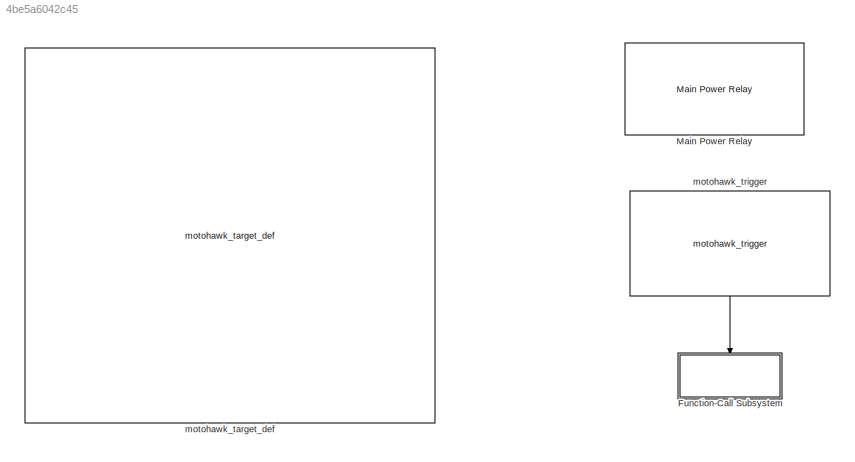
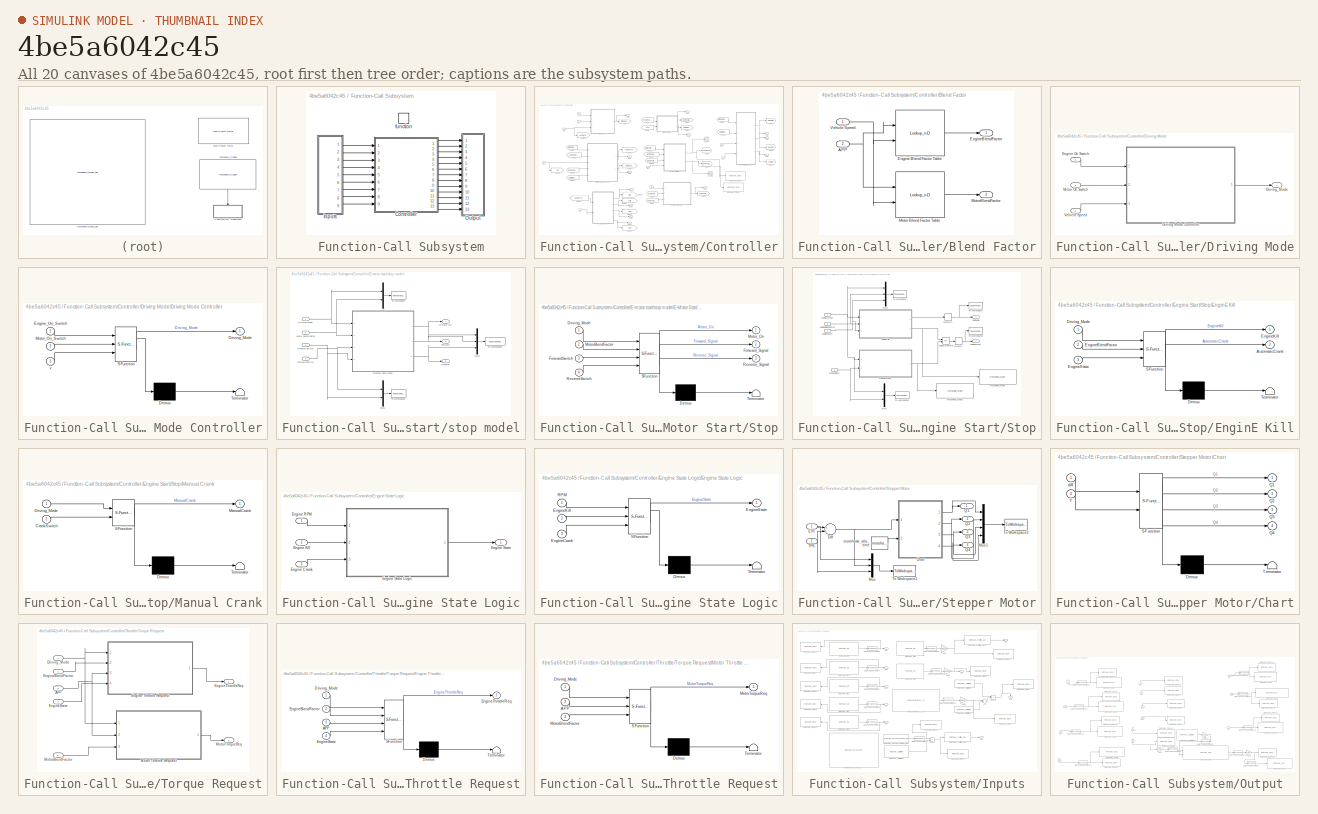
[diagram: thumbnail index - all 20 canvases of the model, root first then tree order]
MODEL slx_4be5a6042c45
KIND model
CONFIG AbsTol = auto
CONFIG FixedStep = 0.001
CONFIG MaxStep = auto
CONFIG MinStep = auto
CONFIG RelTol = 1e-3
CONFIG SampleTimeConstraint = Unconstrained
CONFIG Solver = ode4
CONFIG SolverMode = SingleTasking
CONFIG SolverName = ode4
CONFIG StartTime = 0.0
CONFIG StopTime = 10.0
BLOCK [SubSystem] Function-Call Subsystem
  Ports = [0, 0, 0, 1]
  RequestExecContextInheritance = off
  TreatAsAtomicUnit = on
  Variant = off
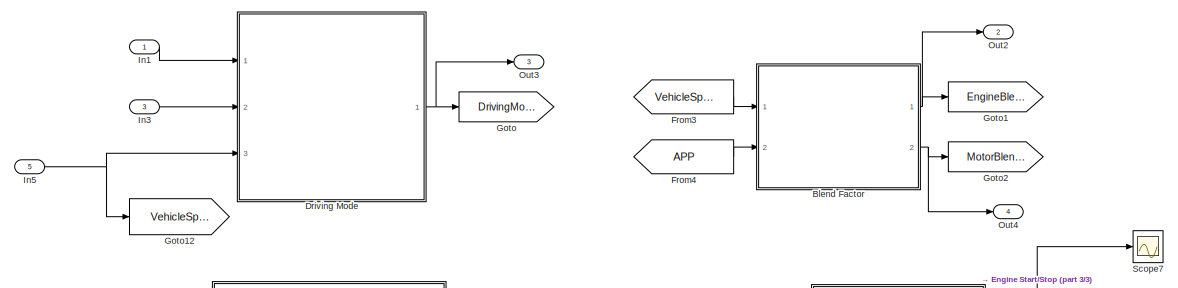
[diagram: Function-Call Subsystem/Controller - part 1/3, top center region]
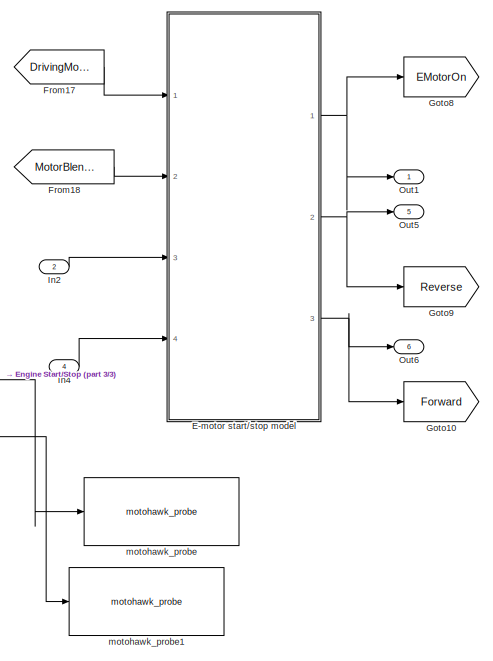
[diagram: Function-Call Subsystem/Controller - part 2/3, middle right region]
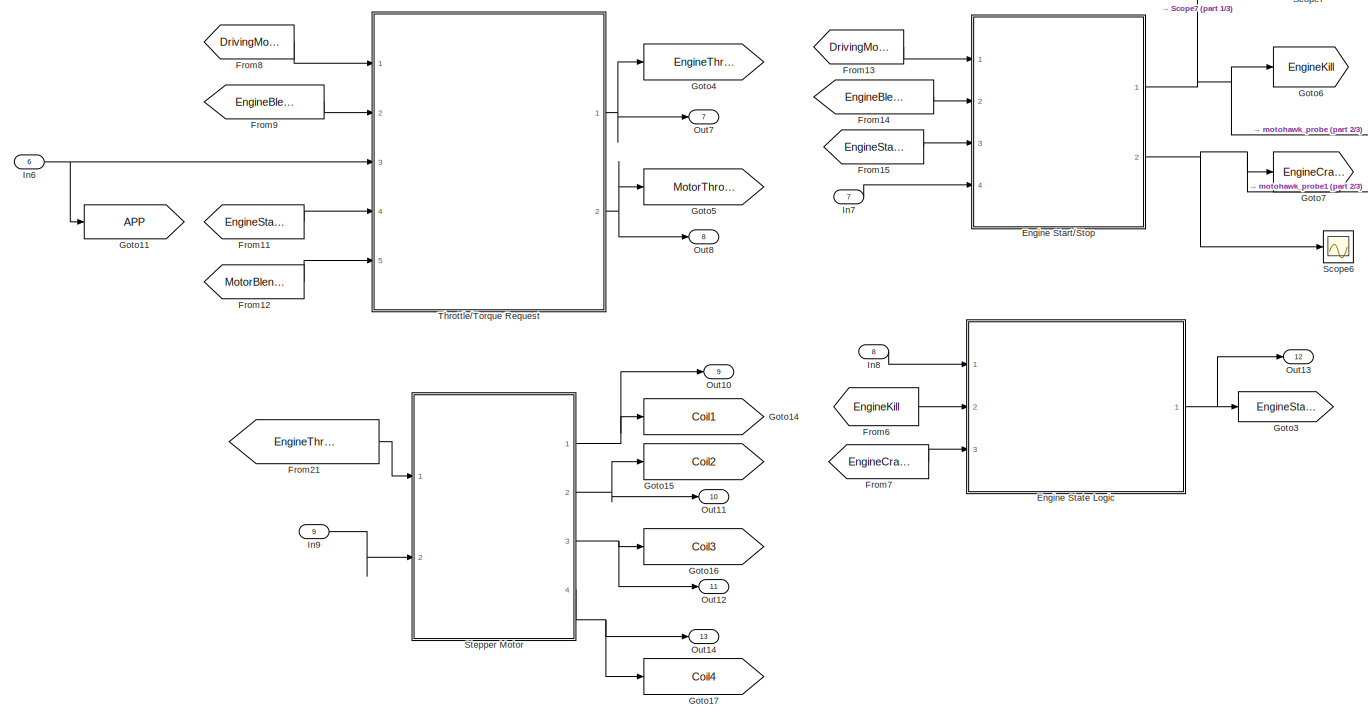
[diagram: Function-Call Subsystem/Controller - part 3/3, full width, middle band]
BLOCK [SubSystem] Function-Call Subsystem/Controller
  Ports = [9, 13]
  RequestExecContextInheritance = off
  Variant = off
BLOCK [SubSystem] Function-Call Subsystem/Controller/Blend Factor
  Ports = [2, 2]
  RequestExecContextInheritance = off
  Variant = off
BLOCK [Inport] Function-Call Subsystem/Controller/Blend Factor/APP
  IconDisplay = Port number
  Port = 2
BLOCK [Lookup_n-D] Function-Call Subsystem/Controller/Blend Factor/Engine Blend Factor Table
  BreakpointsForDimension1 = v
  BreakpointsForDimension2 = x
  InternalRulePriority = Speed
  Ports = [2, 1]
  RndMeth = Simplest
  Table = engineblendfactormap
BLOCK [Outport] Function-Call Subsystem/Controller/Blend Factor/EngineBlendFactor
  IconDisplay = Port number
BLOCK [Lookup_n-D] Function-Call Subsystem/Controller/Blend Factor/Motor Blend Factor Table
  BreakpointsForDimension1 = v
  BreakpointsForDimension2 = x
  InternalRulePriority = Speed
  Ports = [2, 1]
  RndMeth = Simplest
  Table = motorblendfactormap
BLOCK [Outport] Function-Call Subsystem/Controller/Blend Factor/MotorBlendFactor
  IconDisplay = Port number
  Port = 2
BLOCK [Inport] Function-Call Subsystem/Controller/Blend Factor/Vehicle Speed
  IconDisplay = Port number
BLOCK [SubSystem] Function-Call Subsystem/Controller/Driving Mode
  Ports = [3, 1]
  RequestExecContextInheritance = off
  Variant = off
BLOCK [SubSystem] Function-Call Subsystem/Controller/Driving Mode/Driving Mode Controller
  ErrorFcn = Stateflow.Translate.translate
  PermitHierarchicalResolution = ExplicitOnly
  Ports = [3, 1]
  RequestExecContextInheritance = off
  SFBlockType = Chart
  TreatAsAtomicUnit = on
  Variant = off
BLOCK [Demux] Function-Call Subsystem/Controller/Driving Mode/Driving Mode Controller/ Demux 
  Outputs = 1
  Ports = [1, 1]
BLOCK [S-Function] Function-Call Subsystem/Controller/Driving Mode/Driving Mode Controller/ SFunction 
  EnableBusSupport = on
  FunctionName = sf_sfun
  PortCounts = [3 2]
  Ports = [3, 2]
  SFunctionDeploymentMode = off
  Tag = Stateflow S-Function UnmodifiedMotoHawkModel 3
BLOCK [Terminator] Function-Call Subsystem/Controller/Driving Mode/Driving Mode Controller/ Terminator 
BLOCK [Outport] Function-Call Subsystem/Controller/Driving Mode/Driving Mode Controller/Driving_Mode
  IconDisplay = Port number
BLOCK [Inport] Function-Call Subsystem/Controller/Driving Mode/Driving Mode Controller/Engine_On_Switch
  IconDisplay = Port number
BLOCK [Inport] Function-Call Subsystem/Controller/Driving Mode/Driving Mode Controller/Motor_On_Switch
  IconDisplay = Port number
  Port = 2
BLOCK [Inport] Function-Call Subsystem/Controller/Driving Mode/Driving Mode Controller/v
  IconDisplay = Port number
  Port = 3
BLOCK [Outport] Function-Call Subsystem/Controller/Driving Mode/Driving_Mode
  IconDisplay = Port number
BLOCK [Inport] Function-Call Subsystem/Controller/Driving Mode/Engine On Switch
  IconDisplay = Port number
BLOCK [Inport] Function-Call Subsystem/Controller/Driving Mode/Motor On Switch
  IconDisplay = Port number
  Port = 2
BLOCK [Inport] Function-Call Subsystem/Controller/Driving Mode/Vehicle Speed
  IconDisplay = Port number
  Port = 3
BLOCK [SubSystem] Function-Call Subsystem/Controller/E-motor start//stop model
  Ports = [4, 3]
  RequestExecContextInheritance = off
  Variant = off
BLOCK [Inport] Function-Call Subsystem/Controller/E-motor start//stop model/Driving Mode
  IconDisplay = Port number
BLOCK [SubSystem] Function-Call Subsystem/Controller/E-motor start//stop model/E-Motor Start//Stop
  ErrorFcn = Stateflow.Translate.translate
  PermitHierarchicalResolution = ExplicitOnly
  Ports = [4, 3]
  RequestExecContextInheritance = off
  SFBlockType = Chart
  TreatAsAtomicUnit = on
  Variant = off
BLOCK [Demux] Function-Call Subsystem/Controller/E-motor start//stop model/E-Motor Start//Stop/ Demux 
  Outputs = 1
  Ports = [1, 1]
BLOCK [S-Function] Function-Call Subsystem/Controller/E-motor start//stop model/E-Motor Start//Stop/ SFunction 
  EnableBusSupport = on
  FunctionName = sf_sfun
  PortCounts = [4 4]
  Ports = [4, 4]
  SFunctionDeploymentMode = off
  Tag = Stateflow S-Function UnmodifiedMotoHawkModel 7
BLOCK [Terminator] Function-Call Subsystem/Controller/E-motor start//stop model/E-Motor Start//Stop/ Terminator 
BLOCK [Inport] Function-Call Subsystem/Controller/E-motor start//stop model/E-Motor Start//Stop/Driving_Mode
  IconDisplay = Port number
BLOCK [Inport] Function-Call Subsystem/Controller/E-motor start//stop model/E-Motor Start//Stop/ForwardSwitch
  IconDisplay = Port number
  Port = 3
BLOCK [Outport] Function-Call Subsystem/Controller/E-motor start//stop model/E-Motor Start//Stop/Forward_Signal
  IconDisplay = Port number
  Port = 2
BLOCK [Inport] Function-Call Subsystem/Controller/E-motor start//stop model/E-Motor Start//Stop/MotorBlendFactor
  IconDisplay = Port number
  Port = 2
BLOCK [Outport] Function-Call Subsystem/Controller/E-motor start//stop model/E-Motor Start//Stop/Motor_On
  IconDisplay = Port number
BLOCK [Inport] Function-Call Subsystem/Controller/E-motor start//stop model/E-Motor Start//Stop/ReverseSwitch
  IconDisplay = Port number
  Port = 4
BLOCK [Outport] Function-Call Subsystem/Controller/E-motor start//stop model/E-Motor Start//Stop/Reverse_Signal
  IconDisplay = Port number
  Port = 3
BLOCK [Outport] Function-Call Subsystem/Controller/E-motor start//stop model/E-motor On
  IconDisplay = Port number
BLOCK [Outport] Function-Call Subsystem/Controller/E-motor start//stop model/Forward
  IconDisplay = Port number
  Port = 3
BLOCK [Inport] Function-Call Subsystem/Controller/E-motor start//stop model/Forward Switch
  IconDisplay = Port number
  Port = 4
BLOCK [Inport] Function-Call Subsystem/Controller/E-motor start//stop model/Motor Blend Factor
  IconDisplay = Port number
  Port = 2
BLOCK [Mux] Function-Call Subsystem/Controller/E-motor start//stop model/Mux1
  DisplayOption = bar
  Inputs = 2
  Ports = [2, 1]
BLOCK [Mux] Function-Call Subsystem/Controller/E-motor start//stop model/Mux2
  DisplayOption = bar
  Inputs = 2
  Ports = [2, 1]
BLOCK [Mux] Function-Call Subsystem/Controller/E-motor start//stop model/Mux3
  DisplayOption = bar
  Inputs = 3
  Ports = [3, 1]
BLOCK [Outport] Function-Call Subsystem/Controller/E-motor start//stop model/Reverse
  IconDisplay = Port number
  Port = 2
BLOCK [Inport] Function-Call Subsystem/Controller/E-motor start//stop model/Reverse Switch
  IconDisplay = Port number
  Port = 3
BLOCK [ToWorkspace] Function-Call Subsystem/Controller/E-motor start//stop model/To Workspace
  FixptAsFi = on
  MaxDataPoints = inf
  Ports = [1]
  SampleTime = -1
  Save2DSignal = 3-D array (concatenate along third dimension)
  SaveFormat = Structure With Time
  VariableName = MSS_Inputs
BLOCK [ToWorkspace] Function-Call Subsystem/Controller/E-motor start//stop model/To Workspace1
  FixptAsFi = on
  MaxDataPoints = inf
  Ports = [1]
  SampleTime = -1
  Save2DSignal = 3-D array (concatenate along third dimension)
  SaveFormat = Structure With Time
  VariableName = MSS_Switch
BLOCK [ToWorkspace] Function-Call Subsystem/Controller/E-motor start//stop model/To Workspace2
  FixptAsFi = on
  MaxDataPoints = inf
  Ports = [1]
  SampleTime = -1
  Save2DSignal = 3-D array (concatenate along third dimension)
  SaveFormat = Structure With Time
  VariableName = MSS_Outputs
BLOCK [SubSystem] Function-Call Subsystem/Controller/Engine Start//Stop
  Ports = [4, 2]
  RequestExecContextInheritance = off
  Variant = off
BLOCK [Inport] Function-Call Subsystem/Controller/Engine Start//Stop/CrankSwitch
  IconDisplay = Port number
  Port = 4
BLOCK [Inport] Function-Call Subsystem/Controller/Engine Start//Stop/Driving_Mode
  IconDisplay = Port number
BLOCK [SubSystem] Function-Call Subsystem/Controller/Engine Start//Stop/EnginE Kill
  ErrorFcn = Stateflow.Translate.translate
  PermitHierarchicalResolution = ExplicitOnly
  Ports = [3, 2]
  RequestExecContextInheritance = off
  SFBlockType = Chart
  TreatAsAtomicUnit = on
  Variant = off
BLOCK [Demux] Function-Call Subsystem/Controller/Engine Start//Stop/EnginE Kill/ Demux 
  Outputs = 1
  Ports = [1, 1]
BLOCK [S-Function] Function-Call Subsystem/Controller/Engine Start//Stop/EnginE Kill/ SFunction 
  EnableBusSupport = on
  FunctionName = sf_sfun
  PortCounts = [3 3]
  Ports = [3, 3]
  SFunctionDeploymentMode = off
  Tag = Stateflow S-Function UnmodifiedMotoHawkModel 5
BLOCK [Terminator] Function-Call Subsystem/Controller/Engine Start//Stop/EnginE Kill/ Terminator 
BLOCK [Outport] Function-Call Subsystem/Controller/Engine Start//Stop/EnginE Kill/AutomaticCrank
  IconDisplay = Port number
  Port = 2
BLOCK [Inport] Function-Call Subsystem/Controller/Engine Start//Stop/EnginE Kill/Driving_Mode
  IconDisplay = Port number
BLOCK [Inport] Function-Call Subsystem/Controller/Engine Start//Stop/EnginE Kill/EngineBlendFactor
  IconDisplay = Port number
  Port = 2
BLOCK [Outport] Function-Call Subsystem/Controller/Engine Start//Stop/EnginE Kill/EngineKill
  IconDisplay = Port number
BLOCK [Inport] Function-Call Subsystem/Controller/Engine Start//Stop/EnginE Kill/EngineState
  IconDisplay = Port number
  Port = 3
BLOCK [Inport] Function-Call Subsystem/Controller/Engine Start//Stop/EngineBlendFactor
  IconDisplay = Port number
  Port = 2
BLOCK [Outport] Function-Call Subsystem/Controller/Engine Start//Stop/EngineCrank
  IconDisplay = Port number
  Port = 2
BLOCK [Outport] Function-Call Subsystem/Controller/Engine Start//Stop/EngineKill
  IconDisplay = Port number
BLOCK [Inport] Function-Call Subsystem/Controller/Engine Start//Stop/EngineState
  IconDisplay = Port number
  Port = 3
BLOCK [Logic] Function-Call Subsystem/Controller/Engine Start//Stop/Logical Operator
  AllPortsSameDT = off
  Operator = OR
  OutDataTypeStr = boolean
  Ports = [2, 1]
BLOCK [SubSystem] Function-Call Subsystem/Controller/Engine Start//Stop/Manual Crank
  ErrorFcn = Stateflow.Translate.translate
  PermitHierarchicalResolution = ExplicitOnly
  Ports = [2, 1]
  RequestExecContextInheritance = off
  SFBlockType = Chart
  TreatAsAtomicUnit = on
  Variant = off
BLOCK [Demux] Function-Call Subsystem/Controller/Engine Start//Stop/Manual Crank/ Demux 
  Outputs = 1
  Ports = [1, 1]
BLOCK [S-Function] Function-Call Subsystem/Controller/Engine Start//Stop/Manual Crank/ SFunction 
  EnableBusSupport = on
  FunctionName = sf_sfun
  PortCounts = [2 2]
  Ports = [2, 2]
  SFunctionDeploymentMode = off
  Tag = Stateflow S-Function UnmodifiedMotoHawkModel 6
BLOCK [Terminator] Function-Call Subsystem/Controller/Engine Start//Stop/Manual Crank/ Terminator 
BLOCK [Inport] Function-Call Subsystem/Controller/Engine Start//Stop/Manual Crank/CrankSwitch
  IconDisplay = Port number
  Port = 2
BLOCK [Inport] Function-Call Subsystem/Controller/Engine Start//Stop/Manual Crank/Driving_Mode
  IconDisplay = Port number
BLOCK [Outport] Function-Call Subsystem/Controller/Engine Start//Stop/Manual Crank/ManualCrank
  IconDisplay = Port number
BLOCK [Memory] Function-Call Subsystem/Controller/Engine Start//Stop/Memory
  InheritSampleTime = on
BLOCK [Memory] Function-Call Subsystem/Controller/Engine Start//Stop/Memory1
  InheritSampleTime = on
BLOCK [Mux] Function-Call Subsystem/Controller/Engine Start//Stop/Mux1
  DisplayOption = bar
  Inputs = 2
  Ports = [2, 1]
BLOCK [Mux] Function-Call Subsystem/Controller/Engine Start//Stop/Mux2
  DisplayOption = bar
  Inputs = 3
  Ports = [3, 1]
BLOCK [ToWorkspace] Function-Call Subsystem/Controller/Engine Start//Stop/To Workspace
  FixptAsFi = on
  MaxDataPoints = inf
  Ports = [1]
  SampleTime = -1
  Save2DSignal = 3-D array (concatenate along third dimension)
  SaveFormat = Structure With Time
  VariableName = EK_Inputs
BLOCK [ToWorkspace] Function-Call Subsystem/Controller/Engine Start//Stop/To Workspace1
  FixptAsFi = on
  MaxDataPoints = inf
  Ports = [1]
  SampleTime = -1
  Save2DSignal = 3-D array (concatenate along third dimension)
  SaveFormat = Structure With Time
  VariableName = EK_Output
BLOCK [ToWorkspace] Function-Call Subsystem/Controller/Engine Start//Stop/To Workspace2
  FixptAsFi = on
  MaxDataPoints = inf
  Ports = [1]
  SampleTime = -1
  Save2DSignal = 3-D array (concatenate along third dimension)
  SaveFormat = Structure With Time
  VariableName = MC_Inputs
BLOCK [ToWorkspace] Function-Call Subsystem/Controller/Engine Start//Stop/To Workspace3
  FixptAsFi = on
  MaxDataPoints = inf
  Ports = [1]
  SampleTime = -1
  Save2DSignal = 3-D array (concatenate along third dimension)
  SaveFormat = Structure With Time
  VariableName = MC_Output
BLOCK [Reference] Function-Call Subsystem/Controller/Engine Start//Stop/motohawk_probe  REF=MotoHawk_lib/Calibration & Probing Blocks/motohawk_probe
  Ports = [1]
  SourceBlock = MotoHawk_lib/Calibration & Probing Blocks/motohawk_probe
  SourceType = MotoHawk Probe
BLOCK [Reference] Function-Call Subsystem/Controller/Engine Start//Stop/motohawk_probe1  REF=MotoHawk_lib/Calibration & Probing Blocks/motohawk_probe
  Ports = [1]
  SourceBlock = MotoHawk_lib/Calibration & Probing Blocks/motohawk_probe
  SourceType = MotoHawk Probe
BLOCK [SubSystem] Function-Call Subsystem/Controller/Engine State Logic
  Ports = [3, 1]
  RequestExecContextInheritance = off
  Variant = off
BLOCK [Inport] Function-Call Subsystem/Controller/Engine State Logic/Engine Crank
  IconDisplay = Port number
  Port = 3
BLOCK [Inport] Function-Call Subsystem/Controller/Engine State Logic/Engine Kill
  IconDisplay = Port number
  Port = 2
BLOCK [Inport] Function-Call Subsystem/Controller/Engine State Logic/Engine RPM
  IconDisplay = Port number
BLOCK [Outport] Function-Call Subsystem/Controller/Engine State Logic/Engine State
  IconDisplay = Port number
BLOCK [SubSystem] Function-Call Subsystem/Controller/Engine State Logic/Engine State Logic
  ErrorFcn = Stateflow.Translate.translate
  PermitHierarchicalResolution = ExplicitOnly
  Ports = [3, 1]
  RequestExecContextInheritance = off
  SFBlockType = Chart
  TreatAsAtomicUnit = on
  Variant = off
BLOCK [Demux] Function-Call Subsystem/Controller/Engine State Logic/Engine State Logic/ Demux 
  Outputs = 1
  Ports = [1, 1]
BLOCK [S-Function] Function-Call Subsystem/Controller/Engine State Logic/Engine State Logic/ SFunction 
  EnableBusSupport = on
  FunctionName = sf_sfun
  PortCounts = [3 2]
  Ports = [3, 2]
  SFunctionDeploymentMode = off
  Tag = Stateflow S-Function UnmodifiedMotoHawkModel 1
BLOCK [Terminator] Function-Call Subsystem/Controller/Engine State Logic/Engine State Logic/ Terminator 
BLOCK [Inport] Function-Call Subsystem/Controller/Engine State Logic/Engine State Logic/EngineCrank
  IconDisplay = Port number
  Port = 3
BLOCK [Inport] Function-Call Subsystem/Controller/Engine State Logic/Engine State Logic/EngineKill
  IconDisplay = Port number
  Port = 2
BLOCK [Outport] Function-Call Subsystem/Controller/Engine State Logic/Engine State Logic/EngineState
  IconDisplay = Port number
BLOCK [Inport] Function-Call Subsystem/Controller/Engine State Logic/Engine State Logic/RPM
  IconDisplay = Port number
BLOCK [From] Function-Call Subsystem/Controller/From11
  GotoTag = EngineState
  TagVisibility = global
BLOCK [From] Function-Call Subsystem/Controller/From12
  GotoTag = MotorBlendFactor
  TagVisibility = global
BLOCK [From] Function-Call Subsystem/Controller/From13
  GotoTag = DrivingMode
  TagVisibility = global
BLOCK [From] Function-Call Subsystem/Controller/From14
  GotoTag = EngineBlendFactor
  TagVisibility = global
BLOCK [From] Function-Call Subsystem/Controller/From15
  GotoTag = EngineState
  TagVisibility = global
BLOCK [From] Function-Call Subsystem/Controller/From17
  GotoTag = DrivingMode
  TagVisibility = global
BLOCK [From] Function-Call Subsystem/Controller/From18
  GotoTag = MotorBlendFactor
  TagVisibility = global
BLOCK [From] Function-Call Subsystem/Controller/From21
  GotoTag = EngineThrottleReq
  TagVisibility = global
BLOCK [From] Function-Call Subsystem/Controller/From3
  GotoTag = VehicleSpeed
  IconDisplay = Tag and signal name
BLOCK [From] Function-Call Subsystem/Controller/From4
  GotoTag = APP
  IconDisplay = Tag and signal name
BLOCK [From] Function-Call Subsystem/Controller/From6
  GotoTag = EngineKill
BLOCK [From] Function-Call Subsystem/Controller/From7
  GotoTag = EngineCrank
  IconDisplay = Tag and signal name
BLOCK [From] Function-Call Subsystem/Controller/From8
  GotoTag = DrivingMode
  TagVisibility = global
BLOCK [From] Function-Call Subsystem/Controller/From9
  GotoTag = EngineBlendFactor
  TagVisibility = global
BLOCK [Goto] Function-Call Subsystem/Controller/Goto
  GotoTag = DrivingMode
  TagVisibility = global
BLOCK [Goto] Function-Call Subsystem/Controller/Goto1
  GotoTag = EngineBlendFactor
  TagVisibility = global
BLOCK [Goto] Function-Call Subsystem/Controller/Goto10
  GotoTag = Forward
BLOCK [Goto] Function-Call Subsystem/Controller/Goto11
  GotoTag = APP
BLOCK [Goto] Function-Call Subsystem/Controller/Goto12
  GotoTag = VehicleSpeed
BLOCK [Goto] Function-Call Subsystem/Controller/Goto14
  GotoTag = Coil1
  TagVisibility = global
BLOCK [Goto] Function-Call Subsystem/Controller/Goto15
  GotoTag = Coil2
  TagVisibility = global
BLOCK [Goto] Function-Call Subsystem/Controller/Goto16
  GotoTag = Coil3
  TagVisibility = global
BLOCK [Goto] Function-Call Subsystem/Controller/Goto17
  GotoTag = Coil4
  TagVisibility = global
BLOCK [Goto] Function-Call Subsystem/Controller/Goto2
  GotoTag = MotorBlendFactor
  TagVisibility = global
BLOCK [Goto] Function-Call Subsystem/Controller/Goto3
  GotoTag = EngineState
  TagVisibility = global
BLOCK [Goto] Function-Call Subsystem/Controller/Goto4
  GotoTag = EngineThrottleReq
  TagVisibility = global
BLOCK [Goto] Function-Call Subsystem/Controller/Goto5
  GotoTag = MotorThrottleReq
  TagVisibility = global
BLOCK [Goto] Function-Call Subsystem/Controller/Goto6
  GotoTag = EngineKill
BLOCK [Goto] Function-Call Subsystem/Controller/Goto7
  GotoTag = EngineCrank
BLOCK [Goto] Function-Call Subsystem/Controller/Goto8
  GotoTag = EMotorOn
BLOCK [Goto] Function-Call Subsystem/Controller/Goto9
  GotoTag = Reverse
BLOCK [Inport] Function-Call Subsystem/Controller/In1
  IconDisplay = Port number
BLOCK [Inport] Function-Call Subsystem/Controller/In2
  IconDisplay = Port number
  Port = 2
BLOCK [Inport] Function-Call Subsystem/Controller/In3
  IconDisplay = Port number
  Port = 3
BLOCK [Inport] Function-Call Subsystem/Controller/In4
  IconDisplay = Port number
  Port = 4
BLOCK [Inport] Function-Call Subsystem/Controller/In5
  IconDisplay = Port number
  Port = 5
BLOCK [Inport] Function-Call Subsystem/Controller/In6
  IconDisplay = Port number
  Port = 6
BLOCK [Inport] Function-Call Subsystem/Controller/In7
  IconDisplay = Port number
  Port = 7
BLOCK [Inport] Function-Call Subsystem/Controller/In8
  IconDisplay = Port number
  Port = 8
BLOCK [Inport] Function-Call Subsystem/Controller/In9
  IconDisplay = Port number
  Port = 9
BLOCK [Outport] Function-Call Subsystem/Controller/Out1
  IconDisplay = Port number
BLOCK [Outport] Function-Call Subsystem/Controller/Out10
  IconDisplay = Port number
  Port = 9
BLOCK [Outport] Function-Call Subsystem/Controller/Out11
  IconDisplay = Port number
  Port = 10
BLOCK [Outport] Function-Call Subsystem/Controller/Out12
  IconDisplay = Port number
  Port = 11
BLOCK [Outport] Function-Call Subsystem/Controller/Out13
  IconDisplay = Port number
  Port = 12
BLOCK [Outport] Function-Call Subsystem/Controller/Out14
  IconDisplay = Port number
  Port = 13
BLOCK [Outport] Function-Call Subsystem/Controller/Out2
  IconDisplay = Port number
  Port = 2
BLOCK [Outport] Function-Call Subsystem/Controller/Out3
  IconDisplay = Port number
  Port = 3
BLOCK [Outport] Function-Call Subsystem/Controller/Out4
  IconDisplay = Port number
  Port = 4
BLOCK [Outport] Function-Call Subsystem/Controller/Out5
  IconDisplay = Port number
  Port = 5
BLOCK [Outport] Function-Call Subsystem/Controller/Out6
  IconDisplay = Port number
  Port = 6
BLOCK [Outport] Function-Call Subsystem/Controller/Out7
  IconDisplay = Port number
  Port = 7
BLOCK [Outport] Function-Call Subsystem/Controller/Out8
  IconDisplay = Port number
  Port = 8
BLOCK [Scope] Function-Call Subsystem/Controller/Scope6
  Ports = [1]
  ScopeSpecificationString = Simulink.scopes.TimeScopeBlockCfg('CurrentConfiguration', extmgr.ConfigurationSet(extmgr.Configuration('Core','General UI',true),extmgr.Configuration('Core','Source UI',true),extmgr.Configuration('Sources','WiredSimulink',true,'DataLoggingVariableName','ScopeData20','DataLoggingLimitDataPoints',true,'DataLoggingSaveFormat','Array','DataLoggingDecimation','1','DataLoggingDecimateData',true),extmgr....<+166ch>
BLOCK [Scope] Function-Call Subsystem/Controller/Scope7
  Ports = [1]
  ScopeSpecificationString = Simulink.scopes.TimeScopeBlockCfg('CurrentConfiguration', extmgr.ConfigurationSet(extmgr.Configuration('Core','General UI',true),extmgr.Configuration('Core','Source UI',true),extmgr.Configuration('Sources','WiredSimulink',true,'DataLoggingVariableName','ScopeData21','DataLoggingLimitDataPoints',true,'DataLoggingSaveFormat','Array','DataLoggingDecimation','1','DataLoggingDecimateData',true),extmgr....<+166ch>
BLOCK [SubSystem] Function-Call Subsystem/Controller/Stepper Motor
  Ports = [2, 4]
  RequestExecContextInheritance = off
  Variant = off
BLOCK [SubSystem] Function-Call Subsystem/Controller/Stepper Motor/Chart
  ErrorFcn = Stateflow.Translate.translate
  PermitHierarchicalResolution = ExplicitOnly
  Ports = [2, 4]
  RequestExecContextInheritance = off
  SFBlockType = Chart
  TreatAsAtomicUnit = on
  Variant = off
BLOCK [Demux] Function-Call Subsystem/Controller/Stepper Motor/Chart/ Demux 
  Outputs = 1
  Ports = [1, 1]
BLOCK [S-Function] Function-Call Subsystem/Controller/Stepper Motor/Chart/ SFunction 
  EnableBusSupport = on
  FunctionName = sf_sfun
  PortCounts = [2 5]
  Ports = [2, 5]
  SFunctionDeploymentMode = off
  Tag = Stateflow S-Function UnmodifiedMotoHawkModel 9
BLOCK [Terminator] Function-Call Subsystem/Controller/Stepper Motor/Chart/ Terminator 
BLOCK [Outport] Function-Call Subsystem/Controller/Stepper Motor/Chart/Q1
  IconDisplay = Port number
BLOCK [Outport] Function-Call Subsystem/Controller/Stepper Motor/Chart/Q2
  IconDisplay = Port number
  Port = 2
BLOCK [Outport] Function-Call Subsystem/Controller/Stepper Motor/Chart/Q3
  IconDisplay = Port number
  Port = 3
BLOCK [Outport] Function-Call Subsystem/Controller/Stepper Motor/Chart/Q4
  IconDisplay = Port number
  Port = 4
BLOCK [Inport] Function-Call Subsystem/Controller/Stepper Motor/Chart/T
  IconDisplay = Port number
  Port = 2
BLOCK [Inport] Function-Call Subsystem/Controller/Stepper Motor/Chart/diff
  IconDisplay = Port number
BLOCK [Sum] Function-Call Subsystem/Controller/Stepper Motor/Diff
  InputSameDT = off
  Inputs = +-
  OutDataTypeStr = Inherit: Inherit via internal rule
  Ports = [2, 1]
  SaturateOnIntegerOverflow = off
BLOCK [Inport] Function-Call Subsystem/Controller/Stepper Motor/ETR
  IconDisplay = Port number
BLOCK [Mux] Function-Call Subsystem/Controller/Stepper Motor/Mux
  DisplayOption = bar
  Inputs = 3
  Ports = [3, 1]
BLOCK [Mux] Function-Call Subsystem/Controller/Stepper Motor/Mux1
  DisplayOption = bar
  Ports = [4, 1]
BLOCK [Outport] Function-Call Subsystem/Controller/Stepper Motor/Q1
  IconDisplay = Port number
BLOCK [Outport] Function-Call Subsystem/Controller/Stepper Motor/Q2
  IconDisplay = Port number
  Port = 2
BLOCK [Outport] Function-Call Subsystem/Controller/Stepper Motor/Q3
  IconDisplay = Port number
  Port = 3
BLOCK [Outport] Function-Call Subsystem/Controller/Stepper Motor/Q4
  IconDisplay = Port number
  Port = 4
BLOCK [Inport] Function-Call Subsystem/Controller/Stepper Motor/TPS
  IconDisplay = Port number
  Port = 2
BLOCK [ToWorkspace] Function-Call Subsystem/Controller/Stepper Motor/To Workspace1
  FixptAsFi = on
  MaxDataPoints = inf
  Ports = [1]
  SampleTime = -1
  Save2DSignal = 3-D array (concatenate along third dimension)
  SaveFormat = Structure With Time
  VariableName = SM_Inputs
BLOCK [ToWorkspace] Function-Call Subsystem/Controller/Stepper Motor/To Workspace2
  FixptAsFi = on
  MaxDataPoints = inf
  Ports = [1]
  SampleTime = -1
  Save2DSignal = 3-D array (concatenate along third dimension)
  SaveFormat = Structure With Time
  VariableName = SM_Outputs
BLOCK [Reference] Function-Call Subsystem/Controller/Stepper Motor/motohawk_abs_time  REF=MotoHawk_lib/Extra Development Blocks/motohawk_abs_time
  Ports = [0, 1]
  SourceBlock = MotoHawk_lib/Extra Development Blocks/motohawk_abs_time
  SourceType = MotoHawk Absolute Time
BLOCK [SubSystem] Function-Call Subsystem/Controller/Throttle//Torque Request
  Ports = [5, 2]
  RequestExecContextInheritance = off
  Variant = off
BLOCK [Inport] Function-Call Subsystem/Controller/Throttle//Torque Request/APP
  IconDisplay = Port number
  Port = 3
BLOCK [Inport] Function-Call Subsystem/Controller/Throttle//Torque Request/Driving_Mode
  IconDisplay = Port number
BLOCK [SubSystem] Function-Call Subsystem/Controller/Throttle//Torque Request/Engine Throttle Request
  ErrorFcn = Stateflow.Translate.translate
  PermitHierarchicalResolution = ExplicitOnly
  Ports = [4, 1]
  RequestExecContextInheritance = off
  SFBlockType = Chart
  TreatAsAtomicUnit = on
  Variant = off
BLOCK [Demux] Function-Call Subsystem/Controller/Throttle//Torque Request/Engine Throttle Request/ Demux 
  Outputs = 1
  Ports = [1, 1]
BLOCK [S-Function] Function-Call Subsystem/Controller/Throttle//Torque Request/Engine Throttle Request/ SFunction 
  EnableBusSupport = on
  FunctionName = sf_sfun
  PortCounts = [4 2]
  Ports = [4, 2]
  SFunctionDeploymentMode = off
  Tag = Stateflow S-Function UnmodifiedMotoHawkModel 2
BLOCK [Terminator] Function-Call Subsystem/Controller/Throttle//Torque Request/Engine Throttle Request/ Terminator 
BLOCK [Inport] Function-Call Subsystem/Controller/Throttle//Torque Request/Engine Throttle Request/APP
  IconDisplay = Port number
  Port = 3
BLOCK [Inport] Function-Call Subsystem/Controller/Throttle//Torque Request/Engine Throttle Request/Driving_Mode
  IconDisplay = Port number
BLOCK [Inport] Function-Call Subsystem/Controller/Throttle//Torque Request/Engine Throttle Request/EngineBlendFactor
  IconDisplay = Port number
  Port = 2
BLOCK [Inport] Function-Call Subsystem/Controller/Throttle//Torque Request/Engine Throttle Request/EngineState
  IconDisplay = Port number
  Port = 4
BLOCK [Outport] Function-Call Subsystem/Controller/Throttle//Torque Request/Engine Throttle Request/EngineThrottleReq
  IconDisplay = Port number
BLOCK [Inport] Function-Call Subsystem/Controller/Throttle//Torque Request/EngineBlendFactor
  IconDisplay = Port number
  Port = 2
BLOCK [Inport] Function-Call Subsystem/Controller/Throttle//Torque Request/EngineState
  IconDisplay = Port number
  Port = 4
BLOCK [Outport] Function-Call Subsystem/Controller/Throttle//Torque Request/EngineThrottleReq
  IconDisplay = Port number
BLOCK [SubSystem] Function-Call Subsystem/Controller/Throttle//Torque Request/Motor Throttle Request
  ErrorFcn = Stateflow.Translate.translate
  PermitHierarchicalResolution = ExplicitOnly
  Ports = [3, 1]
  RequestExecContextInheritance = off
  SFBlockType = Chart
  TreatAsAtomicUnit = on
  Variant = off
BLOCK [Demux] Function-Call Subsystem/Controller/Throttle//Torque Request/Motor Throttle Request/ Demux 
  Outputs = 1
  Ports = [1, 1]
BLOCK [S-Function] Function-Call Subsystem/Controller/Throttle//Torque Request/Motor Throttle Request/ SFunction 
  EnableBusSupport = on
  FunctionName = sf_sfun
  PortCounts = [3 2]
  Ports = [3, 2]
  SFunctionDeploymentMode = off
  Tag = Stateflow S-Function UnmodifiedMotoHawkModel 4
BLOCK [Terminator] Function-Call Subsystem/Controller/Throttle//Torque Request/Motor Throttle Request/ Terminator 
BLOCK [Inport] Function-Call Subsystem/Controller/Throttle//Torque Request/Motor Throttle Request/APP
  IconDisplay = Port number
  Port = 2
BLOCK [Inport] Function-Call Subsystem/Controller/Throttle//Torque Request/Motor Throttle Request/Driving_Mode
  IconDisplay = Port number
BLOCK [Inport] Function-Call Subsystem/Controller/Throttle//Torque Request/Motor Throttle Request/MotorBlendFactor
  IconDisplay = Port number
  Port = 3
BLOCK [Outport] Function-Call Subsystem/Controller/Throttle//Torque Request/Motor Throttle Request/MotorTorqueReq
  IconDisplay = Port number
BLOCK [Inport] Function-Call Subsystem/Controller/Throttle//Torque Request/MotorBlendFactor
  IconDisplay = Port number
  Port = 5
BLOCK [Outport] Function-Call Subsystem/Controller/Throttle//Torque Request/MotorTorqueReq
  IconDisplay = Port number
  Port = 2
BLOCK [Reference] Function-Call Subsystem/Controller/motohawk_probe  REF=MotoHawk_lib/Calibration & Probing Blocks/motohawk_probe
  Ports = [1]
  SourceBlock = MotoHawk_lib/Calibration & Probing Blocks/motohawk_probe
  SourceType = MotoHawk Probe
BLOCK [Reference] Function-Call Subsystem/Controller/motohawk_probe1  REF=MotoHawk_lib/Calibration & Probing Blocks/motohawk_probe
  Ports = [1]
  SourceBlock = MotoHawk_lib/Calibration & Probing Blocks/motohawk_probe
  SourceType = MotoHawk Probe
BLOCK [SubSystem] Function-Call Subsystem/Inputs
  Ports = [0, 9]
  RequestExecContextInheritance = off
  Variant = off
BLOCK [Sum] Function-Call Subsystem/Inputs/Add
  InputSameDT = off
  OutDataTypeStr = Inherit: Inherit via internal rule
  Ports = [2, 1]
  SaturateOnIntegerOverflow = off
BLOCK [DataTypeConversion] Function-Call Subsystem/Inputs/Data Type Conversion1
  OutDataTypeStr = double
  RndMeth = Floor
  SaturateOnIntegerOverflow = off
BLOCK [DataTypeConversion] Function-Call Subsystem/Inputs/Data Type Conversion15
  OutDataTypeStr = double
  RndMeth = Floor
  SaturateOnIntegerOverflow = off
BLOCK [DataTypeConversion] Function-Call Subsystem/Inputs/Data Type Conversion20
  OutDataTypeStr = double
  RndMeth = Floor
  SaturateOnIntegerOverflow = off
BLOCK [DataTypeConversion] Function-Call Subsystem/Inputs/Data Type Conversion4
  OutDataTypeStr = double
  RndMeth = Floor
  SaturateOnIntegerOverflow = off
BLOCK [DataTypeConversion] Function-Call Subsystem/Inputs/Data Type Conversion5
  OutDataTypeStr = double
  RndMeth = Floor
  SaturateOnIntegerOverflow = off
BLOCK [DataTypeConversion] Function-Call Subsystem/Inputs/Data Type Conversion6
  OutDataTypeStr = double
  RndMeth = Floor
  SaturateOnIntegerOverflow = off
BLOCK [DataTypeConversion] Function-Call Subsystem/Inputs/Data Type Conversion7
  OutDataTypeStr = double
  RndMeth = Floor
  SaturateOnIntegerOverflow = off
BLOCK [DataTypeConversion] Function-Call Subsystem/Inputs/Data Type Conversion8
  OutDataTypeStr = double
  RndMeth = Floor
  SaturateOnIntegerOverflow = off
BLOCK [DataTypeConversion] Function-Call Subsystem/Inputs/Data Type Conversion9
  OutDataTypeStr = double
  RndMeth = Floor
  SaturateOnIntegerOverflow = off
BLOCK [Gain] Function-Call Subsystem/Inputs/Gain2
  Gain = 100/1023
  OutDataTypeStr = Inherit: Inherit via internal rule
  ParamDataTypeStr = Inherit: Inherit via internal rule
  SaturateOnIntegerOverflow = off
BLOCK [Gain] Function-Call Subsystem/Inputs/Gain3
  Gain = 100/1023
  OutDataTypeStr = Inherit: Inherit via internal rule
  ParamDataTypeStr = Inherit: Inherit via internal rule
  SaturateOnIntegerOverflow = off
BLOCK [Gain] Function-Call Subsystem/Inputs/Gain4
  Gain = 1/100
  OutDataTypeStr = Inherit: Inherit via internal rule
  ParamDataTypeStr = Inherit: Inherit via internal rule
  SaturateOnIntegerOverflow = off
BLOCK [Outport] Function-Call Subsystem/Inputs/Out1
  IconDisplay = Port number
BLOCK [Outport] Function-Call Subsystem/Inputs/Out2
  IconDisplay = Port number
  Port = 2
BLOCK [Outport] Function-Call Subsystem/Inputs/Out3
  IconDisplay = Port number
  Port = 3
BLOCK [Outport] Function-Call Subsystem/Inputs/Out4
  IconDisplay = Port number
  Port = 4
BLOCK [Outport] Function-Call Subsystem/Inputs/Out5
  IconDisplay = Port number
  Port = 5
BLOCK [Outport] Function-Call Subsystem/Inputs/Out6
  IconDisplay = Port number
  Port = 6
BLOCK [Outport] Function-Call Subsystem/Inputs/Out7
  IconDisplay = Port number
  Port = 7
BLOCK [Outport] Function-Call Subsystem/Inputs/Out8
  IconDisplay = Port number
  Port = 8
BLOCK [Outport] Function-Call Subsystem/Inputs/Out9
  IconDisplay = Port number
  Port = 9
BLOCK [Product] Function-Call Subsystem/Inputs/Product
  InputSameDT = off
  OutDataTypeStr = Inherit: Inherit via internal rule
  Ports = [2, 1]
  RndMeth = Floor
  SaturateOnIntegerOverflow = off
BLOCK [Product] Function-Call Subsystem/Inputs/Product1
  InputSameDT = off
  OutDataTypeStr = Inherit: Inherit via internal rule
  Ports = [2, 1]
  RndMeth = Floor
  SaturateOnIntegerOverflow = off
BLOCK [Reference] Function-Call Subsystem/Inputs/motohawk_ain5  REF=MotoHawk_lib/Analog I//O Blocks/motohawk_ain
  Ports = [0, 1]
  SourceBlock = MotoHawk_lib/Analog I//O Blocks/motohawk_ain
  SourceType = MotoHawk Analog Input
BLOCK [Reference] Function-Call Subsystem/Inputs/motohawk_ain6  REF=MotoHawk_lib/Analog I//O Blocks/motohawk_ain
  Ports = [0, 1]
  SourceBlock = MotoHawk_lib/Analog I//O Blocks/motohawk_ain
  SourceType = MotoHawk Analog Input
BLOCK [Reference] Function-Call Subsystem/Inputs/motohawk_calibration1  REF=MotoHawk_lib/Calibration & Probing Blocks/motohawk_calibration
  Ports = [0, 1]
  SourceBlock = MotoHawk_lib/Calibration & Probing Blocks/motohawk_calibration
  SourceType = MotoHawk Calibration
BLOCK [Reference] Function-Call Subsystem/Inputs/motohawk_calibration2  REF=MotoHawk_lib/Calibration & Probing Blocks/motohawk_calibration
  Ports = [0, 1]
  SourceBlock = MotoHawk_lib/Calibration & Probing Blocks/motohawk_calibration
  SourceType = MotoHawk Calibration
BLOCK [Reference] Function-Call Subsystem/Inputs/motohawk_calibration3  REF=MotoHawk_lib/Calibration & Probing Blocks/motohawk_calibration
  Ports = [0, 1]
  SourceBlock = MotoHawk_lib/Calibration & Probing Blocks/motohawk_calibration
  SourceType = MotoHawk Calibration
BLOCK [Reference] Function-Call Subsystem/Inputs/motohawk_din  REF=MotoHawk_lib/Digital I//O Blocks/motohawk_din
  Ports = [0, 1]
  SourceBlock = MotoHawk_lib/Digital I//O Blocks/motohawk_din
  SourceType = MotoHawk Digital Input
BLOCK [Reference] Function-Call Subsystem/Inputs/motohawk_din1  REF=MotoHawk_lib/Digital I//O Blocks/motohawk_din
  Ports = [0, 1]
  SourceBlock = MotoHawk_lib/Digital I//O Blocks/motohawk_din
  SourceType = MotoHawk Digital Input
BLOCK [Reference] Function-Call Subsystem/Inputs/motohawk_din2  REF=MotoHawk_lib/Digital I//O Blocks/motohawk_din
  Ports = [0, 1]
  SourceBlock = MotoHawk_lib/Digital I//O Blocks/motohawk_din
  SourceType = MotoHawk Digital Input
BLOCK [Reference] Function-Call Subsystem/Inputs/motohawk_din3  REF=MotoHawk_lib/Digital I//O Blocks/motohawk_din
  Ports = [0, 1]
  SourceBlock = MotoHawk_lib/Digital I//O Blocks/motohawk_din
  SourceType = MotoHawk Digital Input
BLOCK [Reference] Function-Call Subsystem/Inputs/motohawk_din4  REF=MotoHawk_lib/Digital I//O Blocks/motohawk_din
  Ports = [0, 1]
  SourceBlock = MotoHawk_lib/Digital I//O Blocks/motohawk_din
  SourceType = MotoHawk Digital Input
BLOCK [Reference] Function-Call Subsystem/Inputs/motohawk_encoder_average_rpm1  REF=MotoHawk_lib/Encoder Blocks/motohawk_encoder_average_rpm
  Ports = [0, 1]
  SourceBlock = MotoHawk_lib/Encoder Blocks/motohawk_encoder_average_rpm
  SourceType = MotoHawk Average RPM
BLOCK [Reference] Function-Call Subsystem/Inputs/motohawk_encoder_def  REF=MotoHawk_lib/Encoder Blocks/motohawk_encoder_def
  Ports = []
  SourceBlock = MotoHawk_lib/Encoder Blocks/motohawk_encoder_def
  SourceType = MotoHawk Encoder Definition
  UserDataPersistent = on
BLOCK [Reference] Function-Call Subsystem/Inputs/motohawk_frequency_in  REF=MotoHawk_lib/Advanced Digital I//O/motohawk_frequency_in
  Ports = [0, 1]
  SourceBlock = MotoHawk_lib/Advanced Digital I//O/motohawk_frequency_in
  SourceType = MotoHawk Frequency Input
BLOCK [Reference] Function-Call Subsystem/Inputs/motohawk_override_abs  REF=MotoHawk_lib/Calibration & Probing Blocks/motohawk_override_abs
  Ports = [1, 1]
  SourceBlock = MotoHawk_lib/Calibration & Probing Blocks/motohawk_override_abs
  SourceType = MotoHawk Absolute Override
BLOCK [Reference] Function-Call Subsystem/Inputs/motohawk_override_abs1  REF=MotoHawk_lib/Calibration & Probing Blocks/motohawk_override_abs
  Ports = [1, 1]
  SourceBlock = MotoHawk_lib/Calibration & Probing Blocks/motohawk_override_abs
  SourceType = MotoHawk Absolute Override
BLOCK [Reference] Function-Call Subsystem/Inputs/motohawk_probe  REF=MotoHawk_lib/Calibration & Probing Blocks/motohawk_probe
  Ports = [1]
  SourceBlock = MotoHawk_lib/Calibration & Probing Blocks/motohawk_probe
  SourceType = MotoHawk Probe
BLOCK [Reference] Function-Call Subsystem/Inputs/motohawk_probe1  REF=MotoHawk_lib/Calibration & Probing Blocks/motohawk_probe
  Ports = [1]
  SourceBlock = MotoHawk_lib/Calibration & Probing Blocks/motohawk_probe
  SourceType = MotoHawk Probe
BLOCK [Reference] Function-Call Subsystem/Inputs/motohawk_probe10  REF=MotoHawk_lib/Calibration & Probing Blocks/motohawk_probe
  Ports = [1]
  SourceBlock = MotoHawk_lib/Calibration & Probing Blocks/motohawk_probe
  SourceType = MotoHawk Probe
BLOCK [Reference] Function-Call Subsystem/Inputs/motohawk_probe2  REF=MotoHawk_lib/Calibration & Probing Blocks/motohawk_probe
  Ports = [1]
  SourceBlock = MotoHawk_lib/Calibration & Probing Blocks/motohawk_probe
  SourceType = MotoHawk Probe
BLOCK [Reference] Function-Call Subsystem/Inputs/motohawk_probe3  REF=MotoHawk_lib/Calibration & Probing Blocks/motohawk_probe
  Ports = [1]
  SourceBlock = MotoHawk_lib/Calibration & Probing Blocks/motohawk_probe
  SourceType = MotoHawk Probe
BLOCK [Reference] Function-Call Subsystem/Inputs/motohawk_probe4  REF=MotoHawk_lib/Calibration & Probing Blocks/motohawk_probe
  Ports = [1]
  SourceBlock = MotoHawk_lib/Calibration & Probing Blocks/motohawk_probe
  SourceType = MotoHawk Probe
BLOCK [Reference] Function-Call Subsystem/Inputs/motohawk_probe5  REF=MotoHawk_lib/Calibration & Probing Blocks/motohawk_probe
  Ports = [1]
  SourceBlock = MotoHawk_lib/Calibration & Probing Blocks/motohawk_probe
  SourceType = MotoHawk Probe
BLOCK [Reference] Function-Call Subsystem/Inputs/motohawk_probe6  REF=MotoHawk_lib/Calibration & Probing Blocks/motohawk_probe
  Ports = [1]
  SourceBlock = MotoHawk_lib/Calibration & Probing Blocks/motohawk_probe
  SourceType = MotoHawk Probe
BLOCK [Reference] Function-Call Subsystem/Inputs/motohawk_probe7  REF=MotoHawk_lib/Calibration & Probing Blocks/motohawk_probe
  Ports = [1]
  SourceBlock = MotoHawk_lib/Calibration & Probing Blocks/motohawk_probe
  SourceType = MotoHawk Probe
BLOCK [Reference] Function-Call Subsystem/Inputs/motohawk_probe8  REF=MotoHawk_lib/Calibration & Probing Blocks/motohawk_probe
  Ports = [1]
  SourceBlock = MotoHawk_lib/Calibration & Probing Blocks/motohawk_probe
  SourceType = MotoHawk Probe
BLOCK [Reference] Function-Call Subsystem/Inputs/motohawk_probe9  REF=MotoHawk_lib/Calibration & Probing Blocks/motohawk_probe
  Ports = [1]
  SourceBlock = MotoHawk_lib/Calibration & Probing Blocks/motohawk_probe
  SourceType = MotoHawk Probe
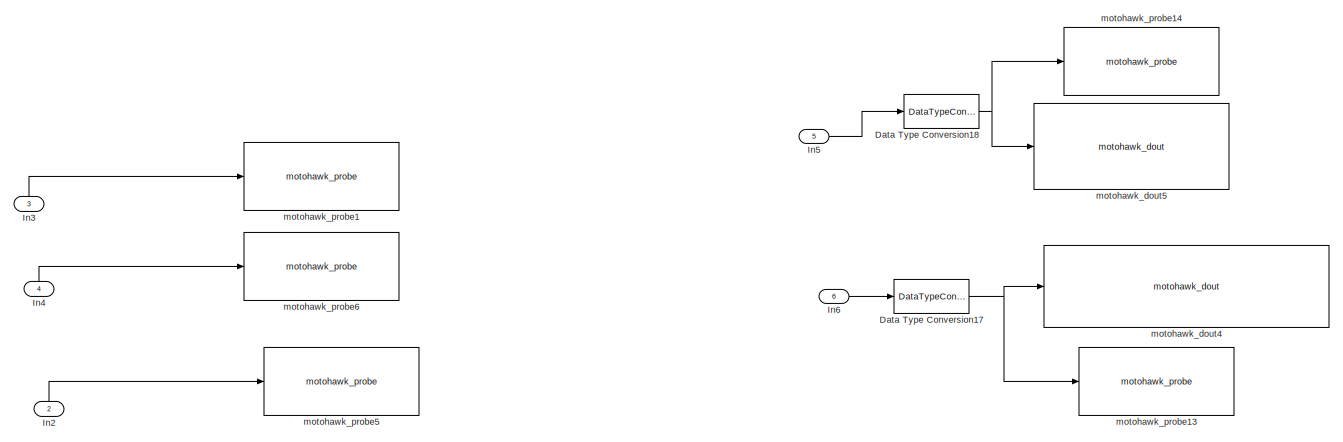
[diagram: Function-Call Subsystem/Output - part 1/3, top center region]
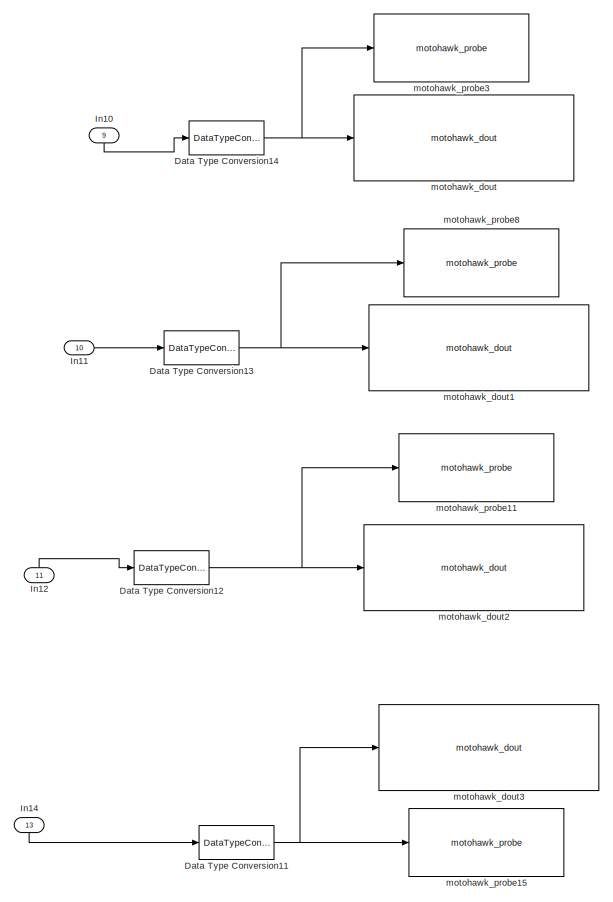
[diagram: Function-Call Subsystem/Output - part 2/3, left side, full height]
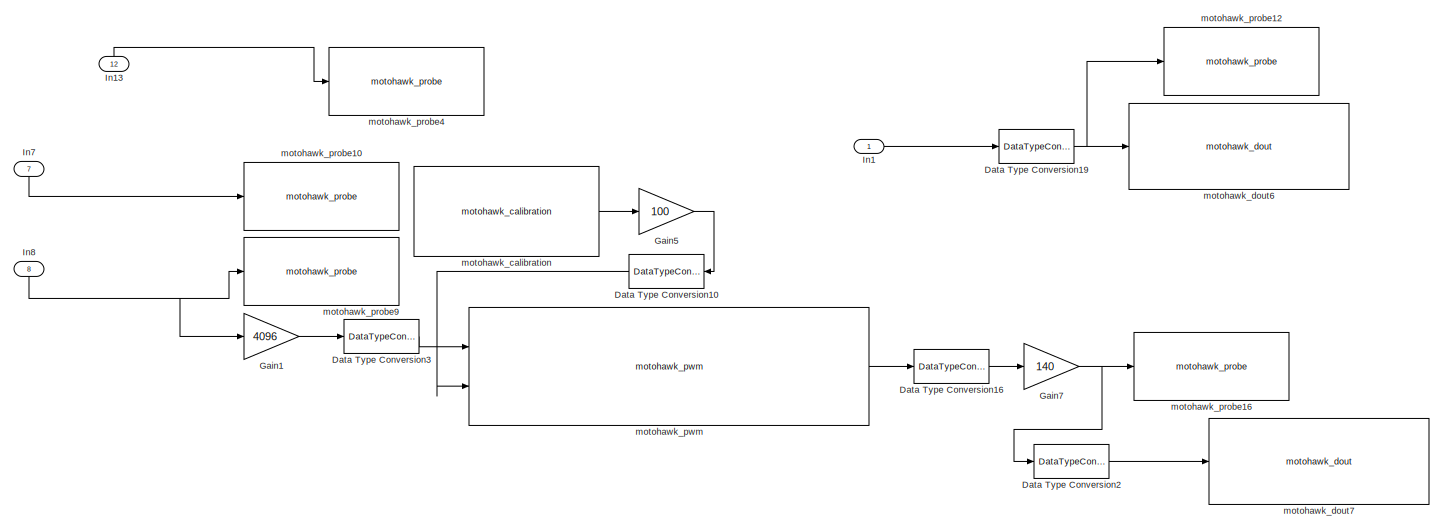
[diagram: Function-Call Subsystem/Output - part 3/3, bottom center region]
BLOCK [SubSystem] Function-Call Subsystem/Output
  Ports = [13]
  RequestExecContextInheritance = off
  Variant = off
BLOCK [DataTypeConversion] Function-Call Subsystem/Output/Data Type Conversion10
  OutDataTypeStr = uint32
  RndMeth = Floor
  SaturateOnIntegerOverflow = off
BLOCK [DataTypeConversion] Function-Call Subsystem/Output/Data Type Conversion11
  OutDataTypeStr = boolean
  RndMeth = Floor
  SaturateOnIntegerOverflow = off
BLOCK [DataTypeConversion] Function-Call Subsystem/Output/Data Type Conversion12
  OutDataTypeStr = boolean
  RndMeth = Floor
  SaturateOnIntegerOverflow = off
BLOCK [DataTypeConversion] Function-Call Subsystem/Output/Data Type Conversion13
  OutDataTypeStr = boolean
  RndMeth = Floor
  SaturateOnIntegerOverflow = off
BLOCK [DataTypeConversion] Function-Call Subsystem/Output/Data Type Conversion14
  OutDataTypeStr = boolean
  RndMeth = Floor
  SaturateOnIntegerOverflow = off
BLOCK [DataTypeConversion] Function-Call Subsystem/Output/Data Type Conversion16
  OutDataTypeStr = double
  RndMeth = Floor
  SaturateOnIntegerOverflow = off
BLOCK [DataTypeConversion] Function-Call Subsystem/Output/Data Type Conversion17
  OutDataTypeStr = boolean
  RndMeth = Floor
  SaturateOnIntegerOverflow = off
BLOCK [DataTypeConversion] Function-Call Subsystem/Output/Data Type Conversion18
  OutDataTypeStr = boolean
  RndMeth = Floor
  SaturateOnIntegerOverflow = off
BLOCK [DataTypeConversion] Function-Call Subsystem/Output/Data Type Conversion19
  OutDataTypeStr = boolean
  RndMeth = Floor
  SaturateOnIntegerOverflow = off
BLOCK [DataTypeConversion] Function-Call Subsystem/Output/Data Type Conversion2
  OutDataTypeStr = boolean
  RndMeth = Floor
  SaturateOnIntegerOverflow = off
BLOCK [DataTypeConversion] Function-Call Subsystem/Output/Data Type Conversion3
  OutDataTypeStr = int16
  RndMeth = Floor
  SaturateOnIntegerOverflow = off
BLOCK [Gain] Function-Call Subsystem/Output/Gain1
  Gain = 4096
  OutDataTypeStr = Inherit: Inherit via internal rule
  ParamDataTypeStr = Inherit: Inherit via internal rule
  SaturateOnIntegerOverflow = off
BLOCK [Gain] Function-Call Subsystem/Output/Gain5
  Gain = 100
  OutDataTypeStr = Inherit: Inherit via internal rule
  ParamDataTypeStr = Inherit: Inherit via internal rule
  SaturateOnIntegerOverflow = off
BLOCK [Gain] Function-Call Subsystem/Output/Gain7
  Gain = 140
  OutDataTypeStr = Inherit: Inherit via internal rule
  ParamDataTypeStr = Inherit: Inherit via internal rule
  SaturateOnIntegerOverflow = off
BLOCK [Inport] Function-Call Subsystem/Output/In1
  IconDisplay = Port number
BLOCK [Inport] Function-Call Subsystem/Output/In10
  IconDisplay = Port number
  Port = 9
BLOCK [Inport] Function-Call Subsystem/Output/In11
  IconDisplay = Port number
  Port = 10
BLOCK [Inport] Function-Call Subsystem/Output/In12
  IconDisplay = Port number
  Port = 11
BLOCK [Inport] Function-Call Subsystem/Output/In13
  IconDisplay = Port number
  Port = 12
BLOCK [Inport] Function-Call Subsystem/Output/In14
  IconDisplay = Port number
  Port = 13
BLOCK [Inport] Function-Call Subsystem/Output/In2
  IconDisplay = Port number
  Port = 2
BLOCK [Inport] Function-Call Subsystem/Output/In3
  IconDisplay = Port number
  Port = 3
BLOCK [Inport] Function-Call Subsystem/Output/In4
  IconDisplay = Port number
  Port = 4
BLOCK [Inport] Function-Call Subsystem/Output/In5
  IconDisplay = Port number
  Port = 5
BLOCK [Inport] Function-Call Subsystem/Output/In6
  IconDisplay = Port number
  Port = 6
BLOCK [Inport] Function-Call Subsystem/Output/In7
  IconDisplay = Port number
  Port = 7
BLOCK [Inport] Function-Call Subsystem/Output/In8
  IconDisplay = Port number
  Port = 8
BLOCK [Reference] Function-Call Subsystem/Output/motohawk_calibration  REF=MotoHawk_lib/Calibration & Probing Blocks/motohawk_calibration
  Ports = [0, 1]
  SourceBlock = MotoHawk_lib/Calibration & Probing Blocks/motohawk_calibration
  SourceType = MotoHawk Calibration
BLOCK [Reference] Function-Call Subsystem/Output/motohawk_dout  REF=MotoHawk_lib/Digital I//O Blocks/motohawk_dout
  Ports = [1]
  SourceBlock = MotoHawk_lib/Digital I//O Blocks/motohawk_dout
  SourceType = MotoHawk Discrete Output
BLOCK [Reference] Function-Call Subsystem/Output/motohawk_dout1  REF=MotoHawk_lib/Digital I//O Blocks/motohawk_dout
  Ports = [1]
  SourceBlock = MotoHawk_lib/Digital I//O Blocks/motohawk_dout
  SourceType = MotoHawk Discrete Output
BLOCK [Reference] Function-Call Subsystem/Output/motohawk_dout2  REF=MotoHawk_lib/Digital I//O Blocks/motohawk_dout
  Ports = [1]
  SourceBlock = MotoHawk_lib/Digital I//O Blocks/motohawk_dout
  SourceType = MotoHawk Discrete Output
BLOCK [Reference] Function-Call Subsystem/Output/motohawk_dout3  REF=MotoHawk_lib/Digital I//O Blocks/motohawk_dout
  Ports = [1]
  SourceBlock = MotoHawk_lib/Digital I//O Blocks/motohawk_dout
  SourceType = MotoHawk Discrete Output
BLOCK [Reference] Function-Call Subsystem/Output/motohawk_dout4  REF=MotoHawk_lib/Digital I//O Blocks/motohawk_dout
  Ports = [1]
  SourceBlock = MotoHawk_lib/Digital I//O Blocks/motohawk_dout
  SourceType = MotoHawk Discrete Output
BLOCK [Reference] Function-Call Subsystem/Output/motohawk_dout5  REF=MotoHawk_lib/Digital I//O Blocks/motohawk_dout
  Ports = [1]
  SourceBlock = MotoHawk_lib/Digital I//O Blocks/motohawk_dout
  SourceType = MotoHawk Discrete Output
BLOCK [Reference] Function-Call Subsystem/Output/motohawk_dout6  REF=MotoHawk_lib/Digital I//O Blocks/motohawk_dout
  Ports = [1]
  SourceBlock = MotoHawk_lib/Digital I//O Blocks/motohawk_dout
  SourceType = MotoHawk Discrete Output
BLOCK [Reference] Function-Call Subsystem/Output/motohawk_dout7  REF=MotoHawk_lib/Digital I//O Blocks/motohawk_dout
  Ports = [1]
  SourceBlock = MotoHawk_lib/Digital I//O Blocks/motohawk_dout
  SourceType = MotoHawk Discrete Output
BLOCK [Reference] Function-Call Subsystem/Output/motohawk_probe1  REF=MotoHawk_lib/Calibration & Probing Blocks/motohawk_probe
  Ports = [1]
  SourceBlock = MotoHawk_lib/Calibration & Probing Blocks/motohawk_probe
  SourceType = MotoHawk Probe
BLOCK [Reference] Function-Call Subsystem/Output/motohawk_probe10  REF=MotoHawk_lib/Calibration & Probing Blocks/motohawk_probe
  Ports = [1]
  SourceBlock = MotoHawk_lib/Calibration & Probing Blocks/motohawk_probe
  SourceType = MotoHawk Probe
BLOCK [Reference] Function-Call Subsystem/Output/motohawk_probe11  REF=MotoHawk_lib/Calibration & Probing Blocks/motohawk_probe
  Ports = [1]
  SourceBlock = MotoHawk_lib/Calibration & Probing Blocks/motohawk_probe
  SourceType = MotoHawk Probe
BLOCK [Reference] Function-Call Subsystem/Output/motohawk_probe12  REF=MotoHawk_lib/Calibration & Probing Blocks/motohawk_probe
  Ports = [1]
  SourceBlock = MotoHawk_lib/Calibration & Probing Blocks/motohawk_probe
  SourceType = MotoHawk Probe
BLOCK [Reference] Function-Call Subsystem/Output/motohawk_probe13  REF=MotoHawk_lib/Calibration & Probing Blocks/motohawk_probe
  Ports = [1]
  SourceBlock = MotoHawk_lib/Calibration & Probing Blocks/motohawk_probe
  SourceType = MotoHawk Probe
BLOCK [Reference] Function-Call Subsystem/Output/motohawk_probe14  REF=MotoHawk_lib/Calibration & Probing Blocks/motohawk_probe
  Ports = [1]
  SourceBlock = MotoHawk_lib/Calibration & Probing Blocks/motohawk_probe
  SourceType = MotoHawk Probe
BLOCK [Reference] Function-Call Subsystem/Output/motohawk_probe15  REF=MotoHawk_lib/Calibration & Probing Blocks/motohawk_probe
  Ports = [1]
  SourceBlock = MotoHawk_lib/Calibration & Probing Blocks/motohawk_probe
  SourceType = MotoHawk Probe
BLOCK [Reference] Function-Call Subsystem/Output/motohawk_probe16  REF=MotoHawk_lib/Calibration & Probing Blocks/motohawk_probe
  Ports = [1]
  SourceBlock = MotoHawk_lib/Calibration & Probing Blocks/motohawk_probe
  SourceType = MotoHawk Probe
BLOCK [Reference] Function-Call Subsystem/Output/motohawk_probe3  REF=MotoHawk_lib/Calibration & Probing Blocks/motohawk_probe
  Ports = [1]
  SourceBlock = MotoHawk_lib/Calibration & Probing Blocks/motohawk_probe
  SourceType = MotoHawk Probe
BLOCK [Reference] Function-Call Subsystem/Output/motohawk_probe4  REF=MotoHawk_lib/Calibration & Probing Blocks/motohawk_probe
  Ports = [1]
  SourceBlock = MotoHawk_lib/Calibration & Probing Blocks/motohawk_probe
  SourceType = MotoHawk Probe
BLOCK [Reference] Function-Call Subsystem/Output/motohawk_probe5  REF=MotoHawk_lib/Calibration & Probing Blocks/motohawk_probe
  Ports = [1]
  SourceBlock = MotoHawk_lib/Calibration & Probing Blocks/motohawk_probe
  SourceType = MotoHawk Probe
BLOCK [Reference] Function-Call Subsystem/Output/motohawk_probe6  REF=MotoHawk_lib/Calibration & Probing Blocks/motohawk_probe
  Ports = [1]
  SourceBlock = MotoHawk_lib/Calibration & Probing Blocks/motohawk_probe
  SourceType = MotoHawk Probe
BLOCK [Reference] Function-Call Subsystem/Output/motohawk_probe8  REF=MotoHawk_lib/Calibration & Probing Blocks/motohawk_probe
  Ports = [1]
  SourceBlock = MotoHawk_lib/Calibration & Probing Blocks/motohawk_probe
  SourceType = MotoHawk Probe
BLOCK [Reference] Function-Call Subsystem/Output/motohawk_probe9  REF=MotoHawk_lib/Calibration & Probing Blocks/motohawk_probe
  Ports = [1]
  SourceBlock = MotoHawk_lib/Calibration & Probing Blocks/motohawk_probe
  SourceType = MotoHawk Probe
BLOCK [Reference] Function-Call Subsystem/Output/motohawk_pwm  REF=MotoHawk_lib/Analog I//O Blocks/motohawk_pwm
  Ports = [2, 1]
  SourceBlock = MotoHawk_lib/Analog I//O Blocks/motohawk_pwm
  SourceType = MotoHawk PWM Output
BLOCK [TriggerPort] Function-Call Subsystem/function
  Ports = []
  StatesWhenEnabling = held
  TriggerType = function-call
  VariantControl = Variant
BLOCK [Reference] Main Power Relay  REF=MotoHawk_lib/Extra Development Blocks/Main Power Relay
  Ports = []
  SourceBlock = MotoHawk_lib/Extra Development Blocks/Main Power Relay
  SourceType = MotoHawk Main Power Relay Control
BLOCK [Reference] motohawk_target_def  REF=MotoHawk_lib/motohawk_target_def
  Ports = []
  Priority = -65535
  SourceBlock = MotoHawk_lib/motohawk_target_def
  SourceType = MotoHawk Target Definition
BLOCK [Reference] motohawk_trigger  REF=MotoHawk_lib/Trigger Blocks/motohawk_trigger
  Ports = [0, 1]
  Priority = 0
  SourceBlock = MotoHawk_lib/Trigger Blocks/motohawk_trigger
  SourceType = MotoHawk Function Trigger
  Tag = Trigger
NET Function-Call Subsystem/Controller/Blend Factor/APP:1 -> Function-Call Subsystem/Controller/Blend Factor/Engine Blend Factor Table:1, Function-Call Subsystem/Controller/Blend Factor/Motor Blend Factor Table:1
LINE Function-Call Subsystem/Controller/Blend Factor/Engine Blend Factor Table:1 -> Function-Call Subsystem/Controller/Blend Factor/EngineBlendFactor:1
LINE Function-Call Subsystem/Controller/Blend Factor/Motor Blend Factor Table:1 -> Function-Call Subsystem/Controller/Blend Factor/MotorBlendFactor:1
NET Function-Call Subsystem/Controller/Blend Factor/Vehicle Speed:1 -> Function-Call Subsystem/Controller/Blend Factor/Engine Blend Factor Table:2, Function-Call Subsystem/Controller/Blend Factor/Motor Blend Factor Table:2
NET Function-Call Subsystem/Controller/Blend Factor:1 -> Function-Call Subsystem/Controller/Goto1:1, Function-Call Subsystem/Controller/Out2:1
NET Function-Call Subsystem/Controller/Blend Factor:2 -> Function-Call Subsystem/Controller/Goto2:1, Function-Call Subsystem/Controller/Out4:1
LINE Function-Call Subsystem/Controller/Driving Mode/Driving Mode Controller:1 -> Function-Call Subsystem/Controller/Driving Mode/Driving_Mode:1
LINE Function-Call Subsystem/Controller/Driving Mode/Engine On Switch:1 -> Function-Call Subsystem/Controller/Driving Mode/Driving Mode Controller:1
LINE Function-Call Subsystem/Controller/Driving Mode/Motor On Switch:1 -> Function-Call Subsystem/Controller/Driving Mode/Driving Mode Controller:2
LINE Function-Call Subsystem/Controller/Driving Mode/Vehicle Speed:1 -> Function-Call Subsystem/Controller/Driving Mode/Driving Mode Controller:3
NET Function-Call Subsystem/Controller/Driving Mode:1 -> Function-Call Subsystem/Controller/Goto:1, Function-Call Subsystem/Controller/Out3:1
NET Function-Call Subsystem/Controller/E-motor start//stop model/Driving Mode:1 -> Function-Call Subsystem/Controller/E-motor start//stop model/E-Motor Start//Stop:1, Function-Call Subsystem/Controller/E-motor start//stop model/Mux2:1
NET Function-Call Subsystem/Controller/E-motor start//stop model/E-Motor Start//Stop:1 -> Function-Call Subsystem/Controller/E-motor start//stop model/E-motor On:1, Function-Call Subsystem/Controller/E-motor start//stop model/Mux3:1
NET Function-Call Subsystem/Controller/E-motor start//stop model/E-Motor Start//Stop:2 -> Function-Call Subsystem/Controller/E-motor start//stop model/Forward:1, Function-Call Subsystem/Controller/E-motor start//stop model/Mux3:2
NET Function-Call Subsystem/Controller/E-motor start//stop model/E-Motor Start//Stop:3 -> Function-Call Subsystem/Controller/E-motor start//stop model/Mux3:3, Function-Call Subsystem/Controller/E-motor start//stop model/Reverse:1
NET Function-Call Subsystem/Controller/E-motor start//stop model/Forward Switch:1 -> Function-Call Subsystem/Controller/E-motor start//stop model/E-Motor Start//Stop:3, Function-Call Subsystem/Controller/E-motor start//stop model/Mux1:1
NET Function-Call Subsystem/Controller/E-motor start//stop model/Motor Blend Factor:1 -> Function-Call Subsystem/Controller/E-motor start//stop model/E-Motor Start//Stop:2, Function-Call Subsystem/Controller/E-motor start//stop model/Mux2:2
LINE Function-Call Subsystem/Controller/E-motor start//stop model/Mux1:1 -> Function-Call Subsystem/Controller/E-motor start//stop model/To Workspace1:1
LINE Function-Call Subsystem/Controller/E-motor start//stop model/Mux2:1 -> Function-Call Subsystem/Controller/E-motor start//stop model/To Workspace:1
LINE Function-Call Subsystem/Controller/E-motor start//stop model/Mux3:1 -> Function-Call Subsystem/Controller/E-motor start//stop model/To Workspace2:1
NET Function-Call Subsystem/Controller/E-motor start//stop model/Reverse Switch:1 -> Function-Call Subsystem/Controller/E-motor start//stop model/E-Motor Start//Stop:4, Function-Call Subsystem/Controller/E-motor start//stop model/Mux1:2
NET Function-Call Subsystem/Controller/E-motor start//stop model:1 -> Function-Call Subsystem/Controller/Goto8:1, Function-Call Subsystem/Controller/Out1:1
NET Function-Call Subsystem/Controller/E-motor start//stop model:2 -> Function-Call Subsystem/Controller/Goto9:1, Function-Call Subsystem/Controller/Out5:1
NET Function-Call Subsystem/Controller/E-motor start//stop model:3 -> Function-Call Subsystem/Controller/Goto10:1, Function-Call Subsystem/Controller/Out6:1
NET Function-Call Subsystem/Controller/Engine Start//Stop/CrankSwitch:1 -> Function-Call Subsystem/Controller/Engine Start//Stop/Manual Crank:2, Function-Call Subsystem/Controller/Engine Start//Stop/Mux1:2
NET Function-Call Subsystem/Controller/Engine Start//Stop/Driving_Mode:1 -> Function-Call Subsystem/Controller/Engine Start//Stop/EnginE Kill:1, Function-Call Subsystem/Controller/Engine Start//Stop/Manual Crank:1, Function-Call Subsystem/Controller/Engine Start//Stop/Mux1:1, Function-Call Subsystem/Controller/Engine Start//Stop/Mux2:1
LINE Function-Call Subsystem/Controller/Engine Start//Stop/EnginE Kill:1 -> Function-Call Subsystem/Controller/Engine Start//Stop/Memory1:1
NET Function-Call Subsystem/Controller/Engine Start//Stop/EnginE Kill:2 -> Function-Call Subsystem/Controller/Engine Start//Stop/Logical Operator:1, Function-Call Subsystem/Controller/Engine Start//Stop/motohawk_probe:1
NET Function-Call Subsystem/Controller/Engine Start//Stop/EngineBlendFactor:1 -> Function-Call Subsystem/Controller/Engine Start//Stop/EnginE Kill:2, Function-Call Subsystem/Controller/Engine Start//Stop/Mux2:2
NET Function-Call Subsystem/Controller/Engine Start//Stop/EngineState:1 -> Function-Call Subsystem/Controller/Engine Start//Stop/EnginE Kill:3, Function-Call Subsystem/Controller/Engine Start//Stop/Mux2:3
LINE Function-Call Subsystem/Controller/Engine Start//Stop/Logical Operator:1 -> Function-Call Subsystem/Controller/Engine Start//Stop/Memory:1
NET Function-Call Subsystem/Controller/Engine Start//Stop/Manual Crank:1 -> Function-Call Subsystem/Controller/Engine Start//Stop/Logical Operator:2, Function-Call Subsystem/Controller/Engine Start//Stop/motohawk_probe1:1
NET Function-Call Subsystem/Controller/Engine Start//Stop/Memory1:1 -> Function-Call Subsystem/Controller/Engine Start//Stop/EngineKill:1, Function-Call Subsystem/Controller/Engine Start//Stop/To Workspace1:1
NET Function-Call Subsystem/Controller/Engine Start//Stop/Memory:1 -> Function-Call Subsystem/Controller/Engine Start//Stop/EngineCrank:1, Function-Call Subsystem/Controller/Engine Start//Stop/To Workspace3:1
LINE Function-Call Subsystem/Controller/Engine Start//Stop/Mux1:1 -> Function-Call Subsystem/Controller/Engine Start//Stop/To Workspace2:1
LINE Function-Call Subsystem/Controller/Engine Start//Stop/Mux2:1 -> Function-Call Subsystem/Controller/Engine Start//Stop/To Workspace:1
NET Function-Call Subsystem/Controller/Engine Start//Stop:1 -> Function-Call Subsystem/Controller/Goto6:1, Function-Call Subsystem/Controller/Scope7:1, Function-Call Subsystem/Controller/motohawk_probe:1
NET Function-Call Subsystem/Controller/Engine Start//Stop:2 -> Function-Call Subsystem/Controller/Goto7:1, Function-Call Subsystem/Controller/Scope6:1, Function-Call Subsystem/Controller/motohawk_probe1:1
LINE Function-Call Subsystem/Controller/Engine State Logic/Engine Crank:1 -> Function-Call Subsystem/Controller/Engine State Logic/Engine State Logic:3
LINE Function-Call Subsystem/Controller/Engine State Logic/Engine Kill:1 -> Function-Call Subsystem/Controller/Engine State Logic/Engine State Logic:2
LINE Function-Call Subsystem/Controller/Engine State Logic/Engine RPM:1 -> Function-Call Subsystem/Controller/Engine State Logic/Engine State Logic:1
LINE Function-Call Subsystem/Controller/Engine State Logic/Engine State Logic:1 -> Function-Call Subsystem/Controller/Engine State Logic/Engine State:1
NET Function-Call Subsystem/Controller/Engine State Logic:1 -> Function-Call Subsystem/Controller/Goto3:1, Function-Call Subsystem/Controller/Out13:1
LINE Function-Call Subsystem/Controller/From11:1 -> Function-Call Subsystem/Controller/Throttle//Torque Request:4
LINE Function-Call Subsystem/Controller/From12:1 -> Function-Call Subsystem/Controller/Throttle//Torque Request:5
LINE Function-Call Subsystem/Controller/From13:1 -> Function-Call Subsystem/Controller/Engine Start//Stop:1
LINE Function-Call Subsystem/Controller/From14:1 -> Function-Call Subsystem/Controller/Engine Start//Stop:2
LINE Function-Call Subsystem/Controller/From15:1 -> Function-Call Subsystem/Controller/Engine Start//Stop:3
LINE Function-Call Subsystem/Controller/From17:1 -> Function-Call Subsystem/Controller/E-motor start//stop model:1
LINE Function-Call Subsystem/Controller/From18:1 -> Function-Call Subsystem/Controller/E-motor start//stop model:2
LINE Function-Call Subsystem/Controller/From21:1 -> Function-Call Subsystem/Controller/Stepper Motor:1
LINE Function-Call Subsystem/Controller/From3:1 -> Function-Call Subsystem/Controller/Blend Factor:1
LINE Function-Call Subsystem/Controller/From4:1 -> Function-Call Subsystem/Controller/Blend Factor:2
LINE Function-Call Subsystem/Controller/From6:1 -> Function-Call Subsystem/Controller/Engine State Logic:2
LINE Function-Call Subsystem/Controller/From7:1 -> Function-Call Subsystem/Controller/Engine State Logic:3
LINE Function-Call Subsystem/Controller/From8:1 -> Function-Call Subsystem/Controller/Throttle//Torque Request:1
LINE Function-Call Subsystem/Controller/From9:1 -> Function-Call Subsystem/Controller/Throttle//Torque Request:2
LINE Function-Call Subsystem/Controller/In1:1 -> Function-Call Subsystem/Controller/Driving Mode:1
LINE Function-Call Subsystem/Controller/In2:1 -> Function-Call Subsystem/Controller/E-motor start//stop model:3
LINE Function-Call Subsystem/Controller/In3:1 -> Function-Call Subsystem/Controller/Driving Mode:2
LINE Function-Call Subsystem/Controller/In4:1 -> Function-Call Subsystem/Controller/E-motor start//stop model:4
NET Function-Call Subsystem/Controller/In5:1 -> Function-Call Subsystem/Controller/Driving Mode:3, Function-Call Subsystem/Controller/Goto12:1
NET Function-Call Subsystem/Controller/In6:1 -> Function-Call Subsystem/Controller/Goto11:1, Function-Call Subsystem/Controller/Throttle//Torque Request:3
LINE Function-Call Subsystem/Controller/In7:1 -> Function-Call Subsystem/Controller/Engine Start//Stop:4
LINE Function-Call Subsystem/Controller/In8:1 -> Function-Call Subsystem/Controller/Engine State Logic:1
LINE Function-Call Subsystem/Controller/In9:1 -> Function-Call Subsystem/Controller/Stepper Motor:2
NET Function-Call Subsystem/Controller/Stepper Motor/Chart:1 -> Function-Call Subsystem/Controller/Stepper Motor/Mux1:1, Function-Call Subsystem/Controller/Stepper Motor/Q1:1
NET Function-Call Subsystem/Controller/Stepper Motor/Chart:2 -> Function-Call Subsystem/Controller/Stepper Motor/Mux1:2, Function-Call Subsystem/Controller/Stepper Motor/Q2:1
NET Function-Call Subsystem/Controller/Stepper Motor/Chart:3 -> Function-Call Subsystem/Controller/Stepper Motor/Mux1:3, Function-Call Subsystem/Controller/Stepper Motor/Q3:1
NET Function-Call Subsystem/Controller/Stepper Motor/Chart:4 -> Function-Call Subsystem/Controller/Stepper Motor/Mux1:4, Function-Call Subsystem/Controller/Stepper Motor/Q4:1
NET Function-Call Subsystem/Controller/Stepper Motor/Diff:1 -> Function-Call Subsystem/Controller/Stepper Motor/Chart:1, Function-Call Subsystem/Controller/Stepper Motor/Mux:2
NET Function-Call Subsystem/Controller/Stepper Motor/ETR:1 -> Function-Call Subsystem/Controller/Stepper Motor/Diff:1, Function-Call Subsystem/Controller/Stepper Motor/Mux:1
LINE Function-Call Subsystem/Controller/Stepper Motor/Mux1:1 -> Function-Call Subsystem/Controller/Stepper Motor/To Workspace2:1
LINE Function-Call Subsystem/Controller/Stepper Motor/Mux:1 -> Function-Call Subsystem/Controller/Stepper Motor/To Workspace1:1
NET Function-Call Subsystem/Controller/Stepper Motor/TPS:1 -> Function-Call Subsystem/Controller/Stepper Motor/Diff:2, Function-Call Subsystem/Controller/Stepper Motor/Mux:3
LINE Function-Call Subsystem/Controller/Stepper Motor/motohawk_abs_time:1 -> Function-Call Subsystem/Controller/Stepper Motor/Chart:2
NET Function-Call Subsystem/Controller/Stepper Motor:1 -> Function-Call Subsystem/Controller/Goto14:1, Function-Call Subsystem/Controller/Out10:1
NET Function-Call Subsystem/Controller/Stepper Motor:2 -> Function-Call Subsystem/Controller/Goto15:1, Function-Call Subsystem/Controller/Out11:1
NET Function-Call Subsystem/Controller/Stepper Motor:3 -> Function-Call Subsystem/Controller/Goto16:1, Function-Call Subsystem/Controller/Out12:1
NET Function-Call Subsystem/Controller/Stepper Motor:4 -> Function-Call Subsystem/Controller/Goto17:1, Function-Call Subsystem/Controller/Out14:1
NET Function-Call Subsystem/Controller/Throttle//Torque Request/APP:1 -> Function-Call Subsystem/Controller/Throttle//Torque Request/Engine Throttle Request:3, Function-Call Subsystem/Controller/Throttle//Torque Request/Motor Throttle Request:2
NET Function-Call Subsystem/Controller/Throttle//Torque Request/Driving_Mode:1 -> Function-Call Subsystem/Controller/Throttle//Torque Request/Engine Throttle Request:1, Function-Call Subsystem/Controller/Throttle//Torque Request/Motor Throttle Request:1
LINE Function-Call Subsystem/Controller/Throttle//Torque Request/Engine Throttle Request:1 -> Function-Call Subsystem/Controller/Throttle//Torque Request/EngineThrottleReq:1
LINE Function-Call Subsystem/Controller/Throttle//Torque Request/EngineBlendFactor:1 -> Function-Call Subsystem/Controller/Throttle//Torque Request/Engine Throttle Request:2
LINE Function-Call Subsystem/Controller/Throttle//Torque Request/EngineState:1 -> Function-Call Subsystem/Controller/Throttle//Torque Request/Engine Throttle Request:4
LINE Function-Call Subsystem/Controller/Throttle//Torque Request/Motor Throttle Request:1 -> Function-Call Subsystem/Controller/Throttle//Torque Request/MotorTorqueReq:1
LINE Function-Call Subsystem/Controller/Throttle//Torque Request/MotorBlendFactor:1 -> Function-Call Subsystem/Controller/Throttle//Torque Request/Motor Throttle Request:3
NET Function-Call Subsystem/Controller/Throttle//Torque Request:1 -> Function-Call Subsystem/Controller/Goto4:1, Function-Call Subsystem/Controller/Out7:1
NET Function-Call Subsystem/Controller/Throttle//Torque Request:2 -> Function-Call Subsystem/Controller/Goto5:1, Function-Call Subsystem/Controller/Out8:1
LINE Function-Call Subsystem/Controller:1 -> Function-Call Subsystem/Output:1
LINE Function-Call Subsystem/Controller:10 -> Function-Call Subsystem/Output:10
LINE Function-Call Subsystem/Controller:11 -> Function-Call Subsystem/Output:11
LINE Function-Call Subsystem/Controller:12 -> Function-Call Subsystem/Output:12
LINE Function-Call Subsystem/Controller:13 -> Function-Call Subsystem/Output:13
LINE Function-Call Subsystem/Controller:2 -> Function-Call Subsystem/Output:2
LINE Function-Call Subsystem/Controller:3 -> Function-Call Subsystem/Output:3
LINE Function-Call Subsystem/Controller:4 -> Function-Call Subsystem/Output:4
LINE Function-Call Subsystem/Controller:5 -> Function-Call Subsystem/Output:5
LINE Function-Call Subsystem/Controller:6 -> Function-Call Subsystem/Output:6
LINE Function-Call Subsystem/Controller:7 -> Function-Call Subsystem/Output:7
LINE Function-Call Subsystem/Controller:8 -> Function-Call Subsystem/Output:8
LINE Function-Call Subsystem/Controller:9 -> Function-Call Subsystem/Output:9
LINE Function-Call Subsystem/Inputs/Add:1 -> Function-Call Subsystem/Inputs/Product1:2
NET Function-Call Subsystem/Inputs/Data Type Conversion15:1 -> Function-Call Subsystem/Inputs/Out7:1, Function-Call Subsystem/Inputs/motohawk_probe10:1
NET Function-Call Subsystem/Inputs/Data Type Conversion1:1 -> Function-Call Subsystem/Inputs/Product:1, Function-Call Subsystem/Inputs/motohawk_probe3:1
LINE Function-Call Subsystem/Inputs/Data Type Conversion20:1 -> Function-Call Subsystem/Inputs/Gain4:1
NET Function-Call Subsystem/Inputs/Data Type Conversion4:1 -> Function-Call Subsystem/Inputs/Out2:1, Function-Call Subsystem/Inputs/motohawk_probe7:1
NET Function-Call Subsystem/Inputs/Data Type Conversion5:1 -> Function-Call Subsystem/Inputs/Out4:1, Function-Call Subsystem/Inputs/motohawk_probe9:1
NET Function-Call Subsystem/Inputs/Data Type Conversion6:1 -> Function-Call Subsystem/Inputs/Out1:1, Function-Call Subsystem/Inputs/motohawk_probe6:1
NET Function-Call Subsystem/Inputs/Data Type Conversion7:1 -> Function-Call Subsystem/Inputs/Out3:1, Function-Call Subsystem/Inputs/motohawk_probe8:1
LINE Function-Call Subsystem/Inputs/Data Type Conversion8:1 -> Function-Call Subsystem/Inputs/Gain2:1
LINE Function-Call Subsystem/Inputs/Data Type Conversion9:1 -> Function-Call Subsystem/Inputs/Gain3:1
NET Function-Call Subsystem/Inputs/Gain2:1 -> Function-Call Subsystem/Inputs/motohawk_override_abs1:1, Function-Call Subsystem/Inputs/motohawk_probe4:1
NET Function-Call Subsystem/Inputs/Gain3:1 -> Function-Call Subsystem/Inputs/Out9:1, Function-Call Subsystem/Inputs/motohawk_probe5:1
NET Function-Call Subsystem/Inputs/Gain4:1 -> Function-Call Subsystem/Inputs/Add:1, Function-Call Subsystem/Inputs/motohawk_probe:1
NET Function-Call Subsystem/Inputs/Product1:1 -> Function-Call Subsystem/Inputs/Out5:1, Function-Call Subsystem/Inputs/motohawk_probe1:1
NET Function-Call Subsystem/Inputs/Product:1 -> Function-Call Subsystem/Inputs/motohawk_override_abs:1, Function-Call Subsystem/Inputs/motohawk_probe2:1
LINE Function-Call Subsystem/Inputs/motohawk_ain5:1 -> Function-Call Subsystem/Inputs/Data Type Conversion9:1
LINE Function-Call Subsystem/Inputs/motohawk_ain6:1 -> Function-Call Subsystem/Inputs/Data Type Conversion8:1
LINE Function-Call Subsystem/Inputs/motohawk_calibration1:1 -> Function-Call Subsystem/Inputs/Product1:1
LINE Function-Call Subsystem/Inputs/motohawk_calibration2:1 -> Function-Call Subsystem/Inputs/Product:2
LINE Function-Call Subsystem/Inputs/motohawk_calibration3:1 -> Function-Call Subsystem/Inputs/Add:2
LINE Function-Call Subsystem/Inputs/motohawk_din1:1 -> Function-Call Subsystem/Inputs/Data Type Conversion7:1
LINE Function-Call Subsystem/Inputs/motohawk_din2:1 -> Function-Call Subsystem/Inputs/Data Type Conversion5:1
LINE Function-Call Subsystem/Inputs/motohawk_din3:1 -> Function-Call Subsystem/Inputs/Data Type Conversion4:1
LINE Function-Call Subsystem/Inputs/motohawk_din4:1 -> Function-Call Subsystem/Inputs/Data Type Conversion15:1
LINE Function-Call Subsystem/Inputs/motohawk_din:1 -> Function-Call Subsystem/Inputs/Data Type Conversion6:1
LINE Function-Call Subsystem/Inputs/motohawk_encoder_average_rpm1:1 -> Function-Call Subsystem/Inputs/Data Type Conversion1:1
LINE Function-Call Subsystem/Inputs/motohawk_frequency_in:1 -> Function-Call Subsystem/Inputs/Data Type Conversion20:1
LINE Function-Call Subsystem/Inputs/motohawk_override_abs1:1 -> Function-Call Subsystem/Inputs/Out6:1
LINE Function-Call Subsystem/Inputs/motohawk_override_abs:1 -> Function-Call Subsystem/Inputs/Out8:1
LINE Function-Call Subsystem/Inputs:1 -> Function-Call Subsystem/Controller:1
LINE Function-Call Subsystem/Inputs:2 -> Function-Call Subsystem/Controller:2
LINE Function-Call Subsystem/Inputs:3 -> Function-Call Subsystem/Controller:3
LINE Function-Call Subsystem/Inputs:4 -> Function-Call Subsystem/Controller:4
LINE Function-Call Subsystem/Inputs:5 -> Function-Call Subsystem/Controller:5
LINE Function-Call Subsystem/Inputs:6 -> Function-Call Subsystem/Controller:6
LINE Function-Call Subsystem/Inputs:7 -> Function-Call Subsystem/Controller:7
LINE Function-Call Subsystem/Inputs:8 -> Function-Call Subsystem/Controller:8
LINE Function-Call Subsystem/Inputs:9 -> Function-Call Subsystem/Controller:9
LINE Function-Call Subsystem/Output/Data Type Conversion10:1 -> Function-Call Subsystem/Output/motohawk_pwm:2
NET Function-Call Subsystem/Output/Data Type Conversion11:1 -> Function-Call Subsystem/Output/motohawk_dout3:1, Function-Call Subsystem/Output/motohawk_probe15:1
NET Function-Call Subsystem/Output/Data Type Conversion12:1 -> Function-Call Subsystem/Output/motohawk_dout2:1, Function-Call Subsystem/Output/motohawk_probe11:1
NET Function-Call Subsystem/Output/Data Type Conversion13:1 -> Function-Call Subsystem/Output/motohawk_dout1:1, Function-Call Subsystem/Output/motohawk_probe8:1
NET Function-Call Subsystem/Output/Data Type Conversion14:1 -> Function-Call Subsystem/Output/motohawk_dout:1, Function-Call Subsystem/Output/motohawk_probe3:1
LINE Function-Call Subsystem/Output/Data Type Conversion16:1 -> Function-Call Subsystem/Output/Gain7:1
NET Function-Call Subsystem/Output/Data Type Conversion17:1 -> Function-Call Subsystem/Output/motohawk_dout4:1, Function-Call Subsystem/Output/motohawk_probe13:1
NET Function-Call Subsystem/Output/Data Type Conversion18:1 -> Function-Call Subsystem/Output/motohawk_dout5:1, Function-Call Subsystem/Output/motohawk_probe14:1
NET Function-Call Subsystem/Output/Data Type Conversion19:1 -> Function-Call Subsystem/Output/motohawk_dout6:1, Function-Call Subsystem/Output/motohawk_probe12:1
LINE Function-Call Subsystem/Output/Data Type Conversion2:1 -> Function-Call Subsystem/Output/motohawk_dout7:1
LINE Function-Call Subsystem/Output/Data Type Conversion3:1 -> Function-Call Subsystem/Output/motohawk_pwm:1
LINE Function-Call Subsystem/Output/Gain1:1 -> Function-Call Subsystem/Output/Data Type Conversion3:1
LINE Function-Call Subsystem/Output/Gain5:1 -> Function-Call Subsystem/Output/Data Type Conversion10:1
NET Function-Call Subsystem/Output/Gain7:1 -> Function-Call Subsystem/Output/Data Type Conversion2:1, Function-Call Subsystem/Output/motohawk_probe16:1
LINE Function-Call Subsystem/Output/In10:1 -> Function-Call Subsystem/Output/Data Type Conversion14:1
LINE Function-Call Subsystem/Output/In11:1 -> Function-Call Subsystem/Output/Data Type Conversion13:1
LINE Function-Call Subsystem/Output/In12:1 -> Function-Call Subsystem/Output/Data Type Conversion12:1
LINE Function-Call Subsystem/Output/In13:1 -> Function-Call Subsystem/Output/motohawk_probe4:1
LINE Function-Call Subsystem/Output/In14:1 -> Function-Call Subsystem/Output/Data Type Conversion11:1
LINE Function-Call Subsystem/Output/In1:1 -> Function-Call Subsystem/Output/Data Type Conversion19:1
LINE Function-Call Subsystem/Output/In2:1 -> Function-Call Subsystem/Output/motohawk_probe5:1
LINE Function-Call Subsystem/Output/In3:1 -> Function-Call Subsystem/Output/motohawk_probe1:1
LINE Function-Call Subsystem/Output/In4:1 -> Function-Call Subsystem/Output/motohawk_probe6:1
LINE Function-Call Subsystem/Output/In5:1 -> Function-Call Subsystem/Output/Data Type Conversion18:1
LINE Function-Call Subsystem/Output/In6:1 -> Function-Call Subsystem/Output/Data Type Conversion17:1
LINE Function-Call Subsystem/Output/In7:1 -> Function-Call Subsystem/Output/motohawk_probe10:1
NET Function-Call Subsystem/Output/In8:1 -> Function-Call Subsystem/Output/Gain1:1, Function-Call Subsystem/Output/motohawk_probe9:1
LINE Function-Call Subsystem/Output/motohawk_calibration:1 -> Function-Call Subsystem/Output/Gain5:1
LINE Function-Call Subsystem/Output/motohawk_pwm:1 -> Function-Call Subsystem/Output/Data Type Conversion16:1
LINE motohawk_trigger:1 -> Function-Call Subsystem:trigger
note: NET lines group one-source signal fan-out (src -> all destinations, sorted); 1:1 wires keep LINE
CHART Function-Call
Subsystem/Controller/Engine State Logic/Engine State Logic states=5 transitions=8
  STATE_LABEL 'EngineCrankState\nen,du:\nEngineState=2;\nEngineCrankTime=temporalCount(sec);\n'
  STATE_LABEL 'EngineOff\nen:EngineState=1;\n'
  STATE_LABEL 'EngineStartFail\nen:EngineState=5;'
  STATE_LABEL 'EngineOn\nen:EngineState=4;'
  STATE_LABEL 'EngineWarmup\nen,du:\nEngineState=3;\nEngineWarmUpTime=temporalCount(sec);'
CHART Function-Call
Subsystem/Controller/Throttle//Torque Request/Engine Throttle
Request states=5 transitions=12
  STATE_LABEL 'ElectricSolo\ndu:EngineThrottleReq=0;\n'
  STATE_LABEL 'BlendingMode'
  STATE_LABEL 'EngineState23\nen,du:\nEngineThrottleReq=7.5;'
  STATE_LABEL 'OtherStates\nen,du:\nEngineThrottleReq=APP*EngineBlendFactor;'
  STATE_LABEL '[EngineState~=2||EngineState~=3]'
  STATE_LABEL '[EngineState==2||EngineState==3]'
  STATE_LABEL '[EngineState~=2||EngineState~=3]'
  STATE_LABEL '[EngineState==2||EngineState==3]'
  STATE_LABEL 'EngineState23\nen,du:\nEngineThrottleReq=7.5;'
  STATE_LABEL 'OtherStates\nen,du:\nEngineThrottleReq=APP*EngineBlendFactor;'
  STATE_LABEL 'EngineSole\ndu:EngineThrottleReq=APP;'
CHART Function-Call
Subsystem/Controller/Driving Mode/Driving Mode Controller states=5 transitions=10
  STATE_LABEL 'DM'
  STATE_LABEL 'EngineSolo\ndu:Driving_Mode=3;'
  STATE_LABEL 'BlendingMode\ndu:Driving_Mode=2;'
  STATE_LABEL 'ElectricSolo\ndu:Driving_Mode=1;'
  STATE_LABEL '[Engine_On_Switch==0||Motor_On_Switch==1]'
  STATE_LABEL '[Engine_On_Switch==1&&Motor_On_Switch==0&&v<1]'
  STATE_LABEL '[Engine_On_Switch==0&&Motor_On_Switch==1&&v<1]'
  STATE_LABEL '[Engine_On_Switch==1||Motor_On_Switch==1]'
  STATE_LABEL '[Engine_On_Switch==0&&Motor_On_Switch==0&&v<1]'
  STATE_LABEL '[Engine_On_Switch==1||Motor_On_Switch==0]'
  STATE_LABEL 'EngineSolo\ndu:Driving_Mode=3;'
  STATE_LABEL 'BlendingMode\ndu:Driving_Mode=2;'
  STATE_LABEL 'ElectricSolo\ndu:Driving_Mode=1;'
  STATE_LABEL 'Nothing'
CHART Function-Call
Subsystem/Controller/Throttle//Torque Request/Motor Throttle Request states=3 transitions=7
  STATE_LABEL 'EngineSolo\ndu:MotorTorqueReq=0;'
  STATE_LABEL 'BlendingMode\ndu:MotorTorqueReq=APP*MotorBlendFactor;'
  STATE_LABEL 'ElectricSolo\ndu:MotorTorqueReq=APP;'
CHART Function-Call
Subsystem/Controller/Engine Start//Stop/EnginE Kill states=7 transitions=15
  STATE_LABEL 'EngineSolo\ndu:EngineKill=0;AutomaticCrank=0;'
  STATE_LABEL 'BlendingMode\n'
  STATE_LABEL 'a\ndu:EngineKill=0;'
  STATE_LABEL 'c\ndu:AutomaticCrank=1;'
  STATE_LABEL 'c1\ndu:AutomaticCrank=0;'
  STATE_LABEL '[EngineState==1]'
  STATE_LABEL '[EngineState~=1]\n\n'
  STATE_LABEL 'b\ndu:EngineKill=1;AutomaticCrank=0;'
  STATE_LABEL '[EngineBlendFactor>0.01]'
  STATE_LABEL '[EngineBlendFactor<=0.01]'
  STATE_LABEL '[EngineBlendFactor>0.01]'
  STATE_LABEL '[EngineBlendFactor<=0.01]'
  STATE_LABEL 'a\ndu:EngineKill=0;'
  STATE_LABEL 'c\ndu:AutomaticCrank=1;'
  STATE_LABEL 'c1\ndu:AutomaticCrank=0;'
  STATE_LABEL '[EngineState==1]'
  STATE_LABEL '[EngineState~=1]\n\n'
  STATE_LABEL 'c\ndu:AutomaticCrank=1;'
  STATE_LABEL 'c1\ndu:AutomaticCrank=0;'
  STATE_LABEL 'b\ndu:EngineKill=1;AutomaticCrank=0;'
  STATE_LABEL 'ElectricSolo\ndu:EngineKill=1;AutomaticCrank=0;'
CHART Function-Call
Subsystem/Controller/Engine Start//Stop/Manual Crank states=5 transitions=12
  STATE_LABEL 'ElectricSolo\ndu:ManualCrank=0;'
  STATE_LABEL 'EngineSolo\n'
  STATE_LABEL 'On\ndu:ManualCrank=1;'
  STATE_LABEL 'Off\ndu:ManualCrank=0;'
  STATE_LABEL '[CrankSwitch==1]'
  STATE_LABEL '[CrankSwitch==0]'
  STATE_LABEL '[CrankSwitch~=0]'
  STATE_LABEL '[CrankSwitch~=1]'
  STATE_LABEL 'On\ndu:ManualCrank=1;'
  STATE_LABEL 'Off\ndu:ManualCrank=0;'
  STATE_LABEL 'BlendingMode\ndu:ManualCrank=0;'
CHART Function-Call
Subsystem/Controller/E-motor start//stop model/E-Motor Start//Stop states=5 transitions=12
  STATE_LABEL 'BlendingMode'
  STATE_LABEL 'B2\ndu:Motor_On=0;\ndu:Forward_Signal=1;\ndu:Reverse_Signal=0;'
  STATE_LABEL 'B1\ndu:Motor_On=1;\ndu:Forward_Signal=1;\ndu:Reverse_Signal=0;'
  STATE_LABEL '[MotorBlendFactor<=0.01]'
  STATE_LABEL '[MotorBlendFactor>0.01]'
  STATE_LABEL '[MotorBlendFactor<=0.01]'
  STATE_LABEL '[MotorBlendFactor>0.01]'
  STATE_LABEL 'B2\ndu:Motor_On=0;\ndu:Forward_Signal=1;\ndu:Reverse_Signal=0;'
  STATE_LABEL 'B1\ndu:Motor_On=1;\ndu:Forward_Signal=1;\ndu:Reverse_Signal=0;'
  STATE_LABEL 'ElectricSolo\ndu:Motor_On=1;\ndu:Forward_Signal=ForwardSwitch;\ndu:Reverse_Signal=ReverseSwitch;'
  STATE_LABEL 'EngineSolo\ndu:Motor_On=0;\ndu:Forward_Signal=0;\ndu:Reverse_Signal=0;'
CHART Function-Call
Subsystem/Controller/Stepper Motor/Chart states=8 transitions=17
  STATE_LABEL 'Step3\nen:T3=T;\ndu:Q1=1;\nQ2=0;\nQ3=0;\nQ4=1;\n'
  STATE_LABEL 'Step4\nen:T4=T;\ndu:Q1=0;\nQ2=0;\nQ3=0;\nQ4=1;\n'
  STATE_LABEL 'Step2\nen:T2=T;\ndu:Q1=1;\nQ2=0;\nQ3=0;\nQ4=0;\n'
  STATE_LABEL 'Step1\nen:T1=T;\ndu:Q1=1;\nQ2=0;\nQ3=1;\nQ4=0;\n'
  STATE_LABEL 'Step5\nen:T5=T;\ndu:Q1=0;\nQ2=1;\nQ3=0;\nQ4=1;\n'
  STATE_LABEL 'Step8\nen:T8=T;\ndu:Q1=0;\nQ2=0;\nQ3=1;\nQ4=0;\n'
  STATE_LABEL 'Step7\nen:T7=T;\ndu:Q1=0;\nQ2=1;\nQ3=1;\nQ4=0;\n'
  STATE_LABEL 'Step6\nen:T6=T;\ndu:Q1=0;\nQ2=1;\nQ3=0;\nQ4=0;\n'
